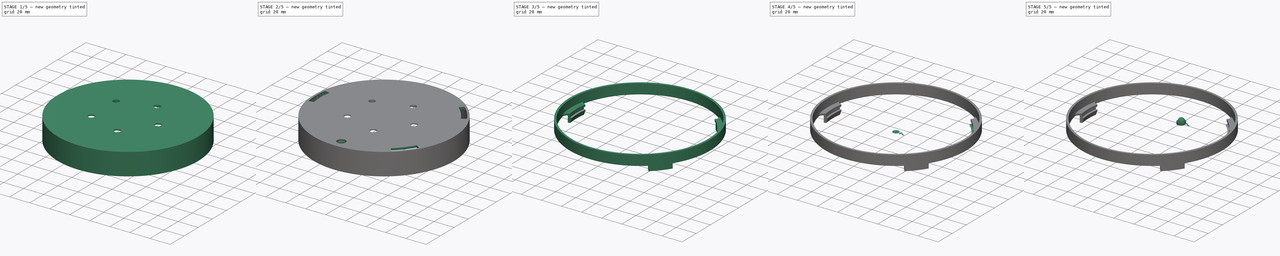
[diagram: build sequence overview — one tinted view per stage of 5, left to right]
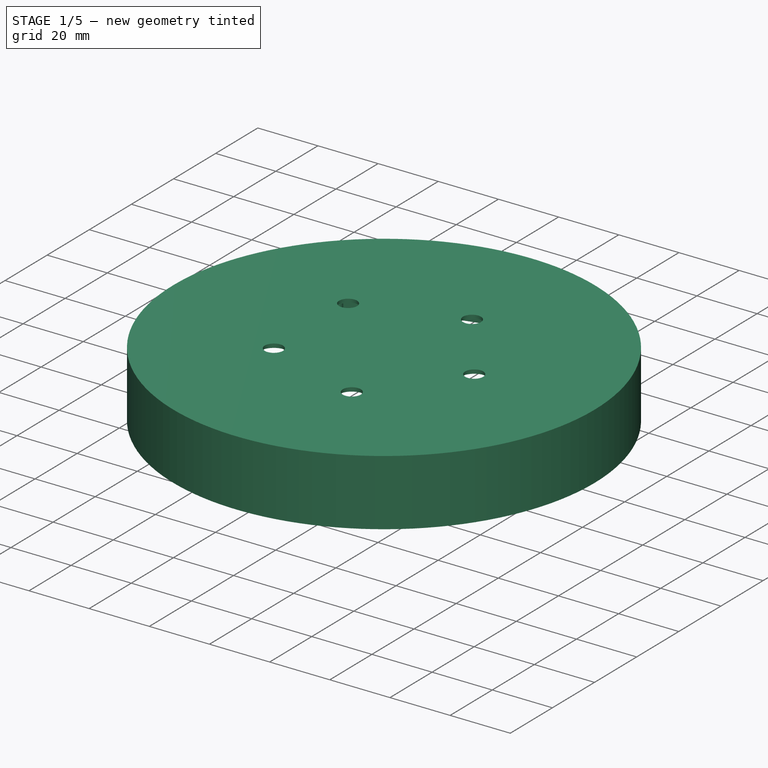
[diagram: stage 1 of 5 — iso view after this stage's code; geometry added in this stage tinted green]
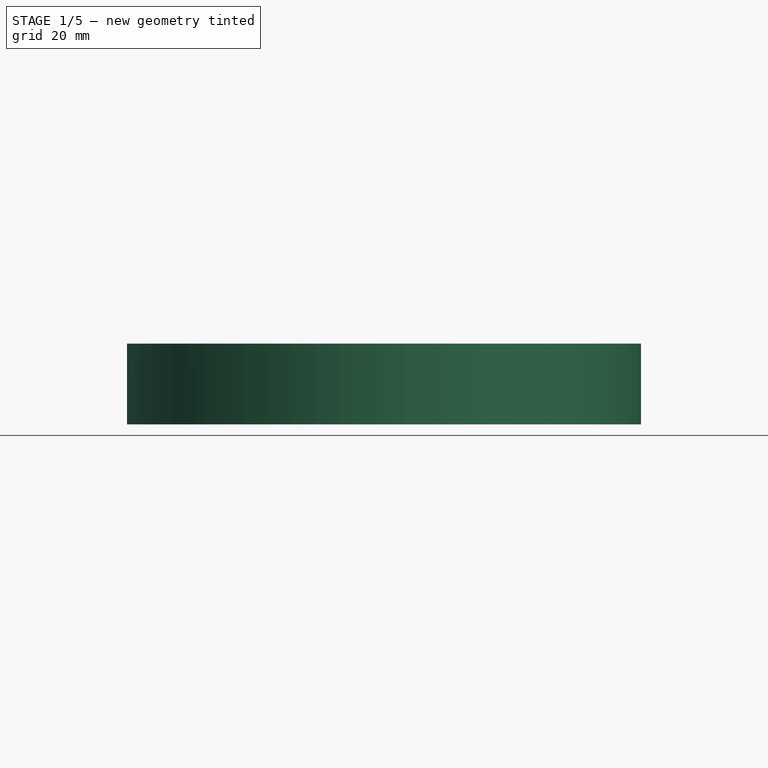
[diagram: stage 1 of 5 — front view after this stage's code; geometry added in this stage tinted green]
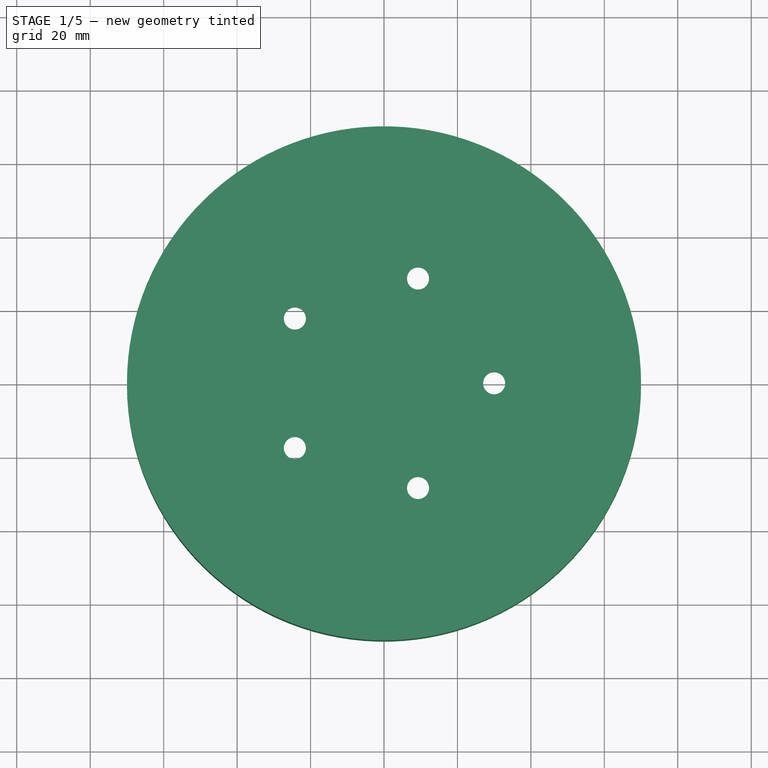
[diagram: stage 1 of 5 — top view after this stage's code; geometry added in this stage tinted green]
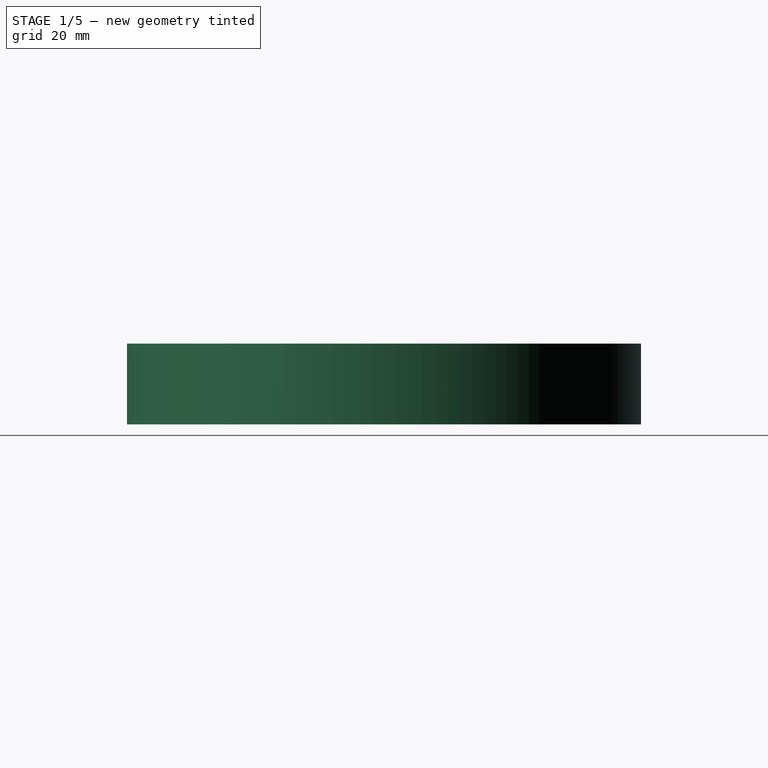
[diagram: stage 1 of 5 — right view after this stage's code; geometry added in this stage tinted green]
FCSTD DOCUMENT  (FreeCAD 0.19R19056 (Git))
Label: LedHoledr_vaso13
License: All rights reserved
LicenseURL: http://en.wikipedia.org/wiki/All_rights_reserved
objects: Sketcher::SketchObject×30, PartDesign::Pad×12, PartDesign::Body×7, PartDesign::Pocket×5, PartDesign::Fillet×5, PartDesign::ShapeBinder×4, PartDesign::AdditiveLoft×4, PartDesign::Chamfer×2, PartDesign::Plane×1, PartDesign::Revolution×1, Part::MultiFuse×1, PartDesign::FeatureBase×1, PartDesign::SubtractiveLoft×1
note: 97 computed .brp shape members not serialized (recipe doc carries the construction recipe); baked Part::Feature solids carry a one-line shape summary decoded from their .brp

FEATURE [Sketcher::SketchObject] Sketch
  MapMode = 5
  Support = -> [XY_Plane]
  sketch-geometry (1):
    g0: Circle CenterX=0 CenterY=0 CenterZ=0 NormalX=0 NormalY=0 NormalZ=1 AngleXU=0 Radius=70
  constraints (2):
    c: Coincident(g0,g-1)
    c: Radius(g0) = 70
FEATURE [PartDesign::Pad] Pad
  Length = 2
  Length2 = 100
  Profile = -> Sketch
  Type = 0
FEATURE [Sketcher::SketchObject] Sketch001
  MapMode = 5
  Placement = pos=(0,0,2) rot=(0,0,1;0rad)
  Support = -> [Pad]
  sketch-geometry (11):
    g0: LineSegment [constr] StartX=30 StartY=-3.6e-15 StartZ=0 EndX=9.27051 EndY=28.5317 EndZ=0
    g1: LineSegment [constr] StartX=9.27051 StartY=28.5317 StartZ=0 EndX=-24.2705 EndY=17.6336 EndZ=0
    g2: LineSegment [constr] StartX=-24.2705 StartY=17.6336 StartZ=0 EndX=-24.2705 EndY=-17.6336 EndZ=0
    g3: LineSegment [constr] StartX=-24.2705 StartY=-17.6336 StartZ=0 EndX=9.27051 EndY=-28.5317 EndZ=0
    g4: LineSegment [constr] StartX=9.27051 StartY=-28.5317 StartZ=0 EndX=30 EndY=-3.6e-15 EndZ=0
    g5: Circle [constr] CenterX=0 CenterY=0 CenterZ=0 NormalX=0 NormalY=0 NormalZ=1 AngleXU=0 Radius=30
    g6: Circle CenterX=9.27051 CenterY=28.5317 CenterZ=0 NormalX=0 NormalY=0 NormalZ=1 AngleXU=0 Radius=3
    g7: Circle CenterX=30 CenterY=-3.6e-15 CenterZ=0 NormalX=0 NormalY=0 NormalZ=1 AngleXU=0 Radius=3
    g8: Circle CenterX=9.27051 CenterY=-28.5317 CenterZ=0 NormalX=0 NormalY=0 NormalZ=1 AngleXU=0 Radius=3
    g9: Circle CenterX=-24.2705 CenterY=-17.6336 CenterZ=0 NormalX=0 NormalY=0 NormalZ=1 AngleXU=0 Radius=3
    g10: Circle CenterX=-24.2705 CenterY=17.6336 CenterZ=0 NormalX=0 NormalY=0 NormalZ=1 AngleXU=0 Radius=3
  constraints (24):
    c: Coincident(g0,g1)
    c: Coincident(g1,g2)
    c: Coincident(g2,g3)
    c: Coincident(g3,g4)
    c: Coincident(g4,g0)
    c: Equal(g0, g1-g4) x4
    c: PointOnObject(g0,g5)
    c: PointOnObject(g1,g5)
    c: PointOnObject(g2,g5)
    c: PointOnObject(g3,g5)
    c: PointOnObject(g4,g5)
    c: Coincident(g5,g-1)
    c: PointOnObject(g4,g-1)
    c: DistanceX(g-1,g0) = 30
    c: Coincident(g6,g0)
    c: Radius(g6) = 3
    c: Coincident(g7,g0)
    c: Coincident(g8,g3)
    c: Coincident(g9,g2)
    c: Coincident(g10,g1)
    c: Equal(g6,g7)
    c: Equal(g7,g8)
    c: Equal(g8,g9)
    c: Equal(g9,g10)
FEATURE [PartDesign::Pocket] Pocket
  BaseFeature = -> Pad
  Length = 5
  Length2 = 100
  Profile = -> Sketch001
  Type = 1
FEATURE [Sketcher::SketchObject] Sketch011
  MapMode = 5
  Placement = pos=(0,0,0) rot=(1,0,0;3.14159rad)
  Support = -> [Pocket]
  sketch-geometry (11):
    g0: LineSegment [constr] StartX=30 StartY=-3.6e-15 StartZ=0 EndX=9.27051 EndY=28.5317 EndZ=0
    g1: LineSegment [constr] StartX=9.27051 StartY=28.5317 StartZ=0 EndX=-24.2705 EndY=17.6336 EndZ=0
    g2: LineSegment [constr] StartX=-24.2705 StartY=17.6336 StartZ=0 EndX=-24.2705 EndY=-17.6336 EndZ=0
    g3: LineSegment [constr] StartX=-24.2705 StartY=-17.6336 StartZ=0 EndX=9.27051 EndY=-28.5317 EndZ=0
    g4: LineSegment [constr] StartX=9.27051 StartY=-28.5317 StartZ=0 EndX=30 EndY=-3.6e-15 EndZ=0
    g5: Circle [constr] CenterX=0 CenterY=0 CenterZ=0 NormalX=0 NormalY=0 NormalZ=1 AngleXU=0 Radius=30
    g6: Circle CenterX=30 CenterY=-3.6e-15 CenterZ=0 NormalX=0 NormalY=0 NormalZ=1 AngleXU=0 Radius=4.5
    g7: Circle CenterX=9.27051 CenterY=28.5317 CenterZ=0 NormalX=0 NormalY=0 NormalZ=1 AngleXU=0 Radius=4.5
    g8: Circle CenterX=-24.2705 CenterY=17.6336 CenterZ=0 NormalX=0 NormalY=0 NormalZ=1 AngleXU=0 Radius=4.5
    g9: Circle CenterX=-24.2705 CenterY=-17.6336 CenterZ=0 NormalX=0 NormalY=0 NormalZ=1 AngleXU=0 Radius=4.5
    g10: Circle CenterX=9.27051 CenterY=-28.5317 CenterZ=0 NormalX=0 NormalY=0 NormalZ=1 AngleXU=0 Radius=4.5
  constraints (24):
    c: Coincident(g0,g1)
    c: Coincident(g1,g2)
    c: Coincident(g2,g3)
    c: Coincident(g3,g4)
    c: Coincident(g4,g0)
    c: Equal(g0, g1-g4) x4
    c: PointOnObject(g0,g5)
    c: PointOnObject(g1,g5)
    c: PointOnObject(g2,g5)
    c: PointOnObject(g3,g5)
    c: PointOnObject(g4,g5)
    c: Coincident(g5,g-1)
    c: PointOnObject(g4,g-1)
    c: DistanceX(g-1,g0) = 30
    c: Coincident(g6,g0)
    c: Radius(g6) = 4.5
    c: Coincident(g7,g0)
    c: Coincident(g8,g1)
    c: Coincident(g9,g2)
    c: Coincident(g10,g3)
    c: Equal(g7,g8)
    c: Equal(g10,g9)
    c: Equal(g6,g10)
    c: Equal(g9,g8)
FEATURE [PartDesign::Pocket] Pocket002
  BaseFeature = -> Pocket
  Length = 1
  Length2 = 100
  Profile = -> Sketch011
  Type = 0
FEATURE [Sketcher::SketchObject] Sketch012
  MapMode = 5
  Placement = pos=(0,0,0) rot=(1,0,0;3.14159rad)
  Support = -> [Pocket002]
  sketch-geometry (2):
    g0: Circle CenterX=0 CenterY=0 CenterZ=0 NormalX=0 NormalY=0 NormalZ=1 AngleXU=0 Radius=70
    g1: Circle CenterX=0 CenterY=0 CenterZ=0 NormalX=0 NormalY=0 NormalZ=1 AngleXU=0 Radius=68
  constraints (4):
    c: Coincident(g0,g-1)
    c: Coincident(g1,g0)
    c: Radius(g0) = 70
    c: Radius(g1) = 68
FEATURE [PartDesign::Pad] Pad005
  BaseFeature = -> Pocket002
  Length = 20
  Length2 = 100
  Profile = -> Sketch012
  Type = 0
FEATURE [PartDesign::Body] Body010  label="LED2"
  BaseFeature = -> Fusion001
  Group = -> [Clone]
  Origin = -> Origin010
  Placement = pos=(58.4,-9.2,0) rot=(0,0,1;1.5708rad)
  Tip = -> Clone
FEATURE [Sketcher::SketchObject] Sketch030
  MapMode = 5
  Placement = pos=(0,0,1) rot=(1,0,0;3.14159rad)
  sketch-geometry (5):
    g0: Circle CenterX=15.0314 CenterY=-10.4945 CenterZ=0 NormalX=0 NormalY=0 NormalZ=1 AngleXU=0 Radius=3
    g1: Circle CenterX=-38.4545 CenterY=-33.0665 CenterZ=0 NormalX=0 NormalY=0 NormalZ=1 AngleXU=0 Radius=3
    g2: Circle CenterX=34.6789 CenterY=-51.0272 CenterZ=0 NormalX=0 NormalY=0 NormalZ=1 AngleXU=0 Radius=3
    g3: Circle CenterX=4.56173 CenterY=-60.0309 CenterZ=0 NormalX=0 NormalY=0 NormalZ=1 AngleXU=0 Radius=3
    g4: Circle CenterX=-21.6926 CenterY=-54.6115 CenterZ=0 NormalX=0 NormalY=0 NormalZ=1 AngleXU=0 Radius=3
  constraints (5):
    c: Diameter(g4) = 6
    c: Equal(g4,g1)
    c: Equal(g1,g0)
    c: Equal(g0,g2)
    c: Equal(g2,g3)
FEATURE [PartDesign::Pad] Pad014
  BaseFeature = -> Pad005
  Length = 4
  Length2 = 100
  Profile = -> Sketch030
  Type = 0
FEATURE [Sketcher::SketchObject] Sketch031
  ExternalGeometry = -> [Pad014]
  MapMode = 5
  Placement = pos=(0,0,-3) rot=(1,0,0;3.14159rad)
  Support = -> [Pad014]
  sketch-geometry (5):
    g0: Circle CenterX=-38.4545 CenterY=-33.0665 CenterZ=0 NormalX=0 NormalY=0 NormalZ=1 AngleXU=0 Radius=1.4
    g1: Circle CenterX=-21.6926 CenterY=-54.6115 CenterZ=0 NormalX=0 NormalY=0 NormalZ=1 AngleXU=0 Radius=1.4
    g2: Circle CenterX=4.56173 CenterY=-60.0309 CenterZ=0 NormalX=0 NormalY=0 NormalZ=1 AngleXU=0 Radius=1.4
    g3: Circle CenterX=34.6789 CenterY=-51.0272 CenterZ=0 NormalX=0 NormalY=0 NormalZ=1 AngleXU=0 Radius=1.4
    g4: Circle CenterX=15.0314 CenterY=-10.4945 CenterZ=0 NormalX=0 NormalY=0 NormalZ=1 AngleXU=0 Radius=1.4
  constraints (5):
    c: Equal(g4,g0)
    c: Equal(g0,g1)
    c: Equal(g1,g2)
    c: Equal(g2,g3)
    c: Diameter(g4) = 2.8
FEATURE [PartDesign::Pad] Pad015
  BaseFeature = -> Pad014
  Length = 6
  Length2 = 100
  Profile = -> Sketch031
  Type = 0
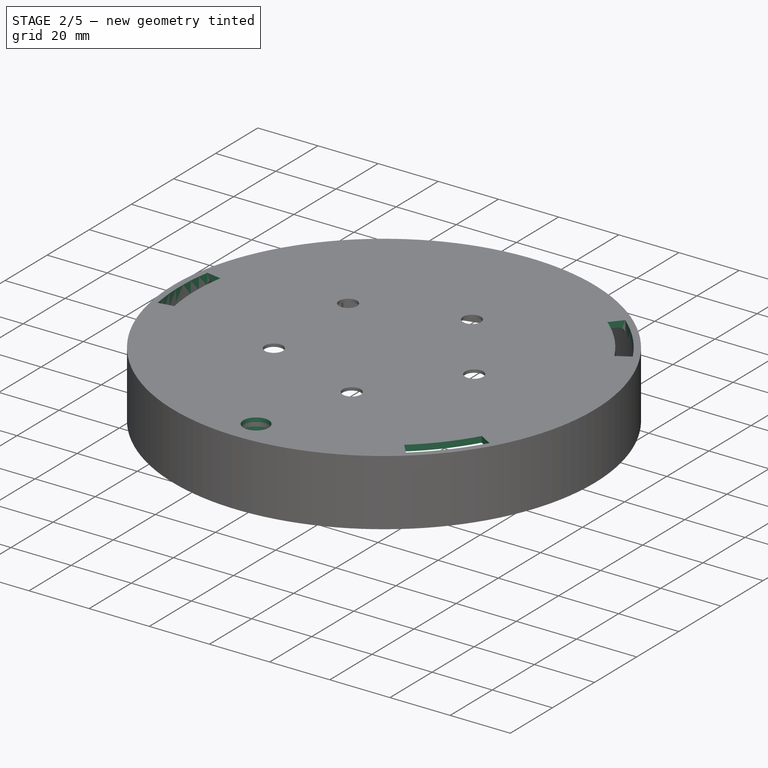
[diagram: stage 2 of 5 — iso view after this stage's code; geometry added in this stage tinted green]
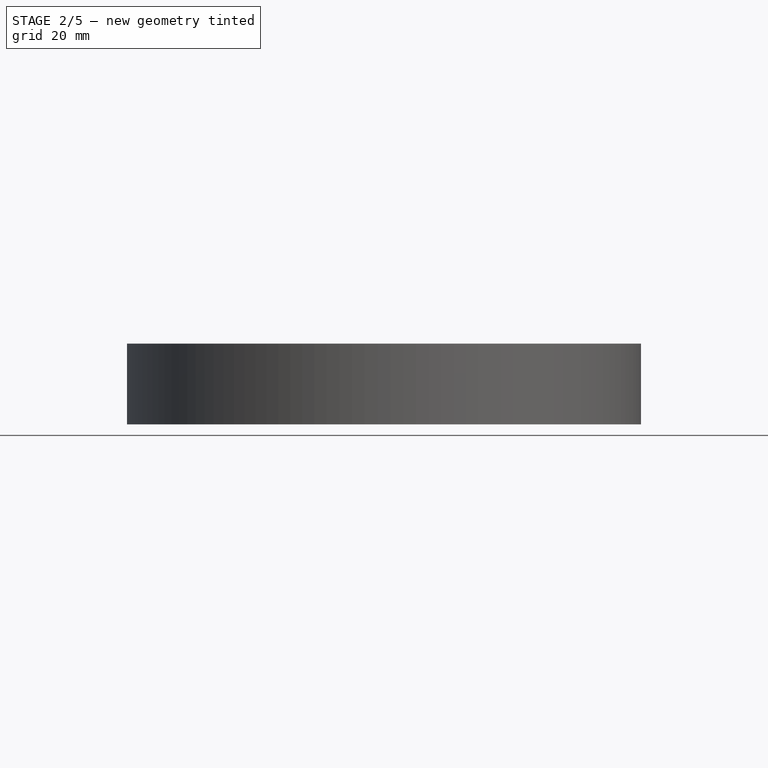
[diagram: stage 2 of 5 — front view after this stage's code; geometry added in this stage tinted green]
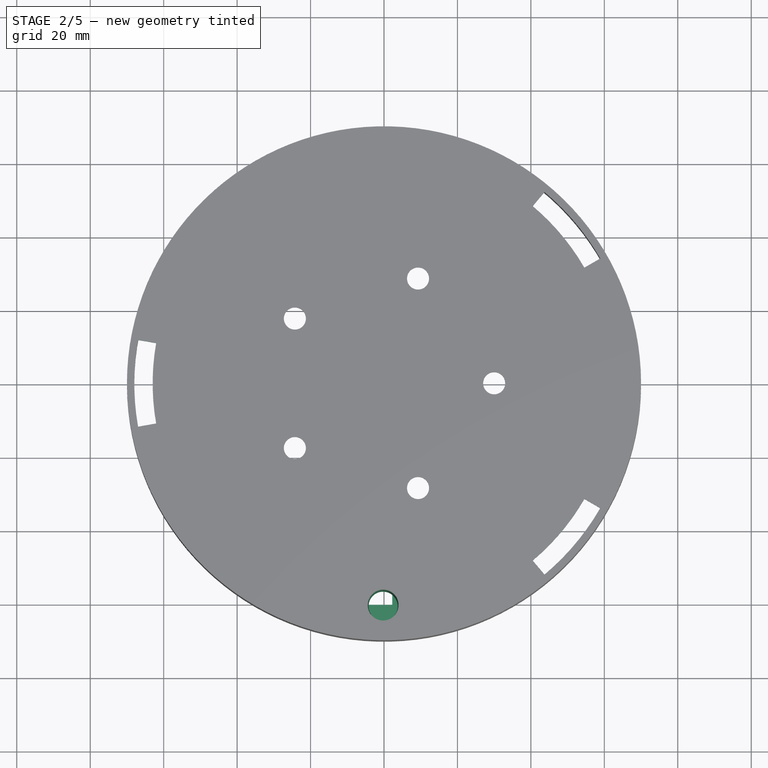
[diagram: stage 2 of 5 — top view after this stage's code; geometry added in this stage tinted green]
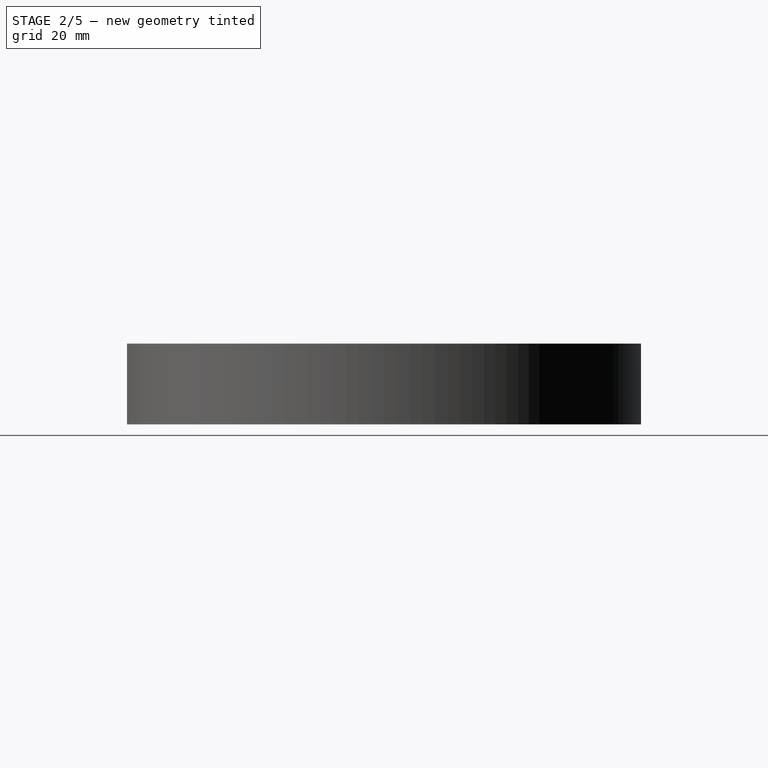
[diagram: stage 2 of 5 — right view after this stage's code; geometry added in this stage tinted green]
FEATURE [Sketcher::SketchObject] Sketch032
  MapMode = 5
  Placement = pos=(0,0,0) rot=(1,0,0;3.14159rad)
  sketch-geometry (1):
    g0: Circle CenterX=-0.238248 CenterY=60.3975 CenterZ=0 NormalX=0 NormalY=0 NormalZ=1 AngleXU=0 Radius=5
  constraints (1):
    c: Diameter(g0) = 10
FEATURE [PartDesign::Pad] Pad016
  BaseFeature = -> Pad015
  Length = 20
  Length2 = 100
  Profile = -> Sketch032
  Type = 0
FEATURE [Sketcher::SketchObject] Sketch036
  AttachmentOffset = pos=(-55,0,-1) rot=(0,1,0;1.5708rad)
  MapMode = 5
  Placement = pos=(-1,-55,1.2e-14) rot=(0,0.707107,0.707107;3.14159rad)
  Support = -> [YZ_Plane]
  sketch-geometry (5):
    g0: LineSegment StartX=-3.25567 StartY=-17 StartZ=0 EndX=3.25567 EndY=-17 EndZ=0
    g1: LineSegment StartX=3.25567 StartY=-17 StartZ=0 EndX=3.25567 EndY=-20 EndZ=0
    g2: LineSegment StartX=3.25567 StartY=-20 StartZ=0 EndX=-3.25567 EndY=-20 EndZ=0
    g3: LineSegment StartX=-3.25567 StartY=-20 StartZ=0 EndX=-3.25567 EndY=-17 EndZ=0
    g4: GeomPoint X=0 Y=-17 Z=0
  constraints (12):
    c: Coincident(g0,g1)
    c: Coincident(g1,g2)
    c: Coincident(g2,g3)
    c: Coincident(g3,g0)
    c: Horizontal(g0)
    c: Horizontal(g2)
    c: Vertical(g1)
    c: Vertical(g3)
    c: DistanceY(g2,g-1) = 20
    c: DistanceY(g1,g1) = 3
    c: PointOnObject(g4,g-2)
    c: Symmetric(g0,g0,g4)
FEATURE [PartDesign::Pocket] Pocket005
  BaseFeature = -> Pad016
  Length = 5
  Length2 = 100
  Profile = -> Sketch036
  Type = 0
FEATURE [PartDesign::Fillet] Fillet
  Base = -> Pocket005 [Edge23]
  BaseFeature = -> Pocket005
  Radius = 2
FEATURE [PartDesign::Chamfer] Chamfer
  Base = -> Fillet [Edge15,Edge13,Edge7,Edge8,Edge11]
  BaseFeature = -> Fillet
  Size = 0.7
FEATURE [PartDesign::Chamfer] Chamfer001
  Base = -> Chamfer [Edge47,Edge46,Edge49,Edge45,Edge48]
  BaseFeature = -> Chamfer
  Size = 1
FEATURE [Sketcher::SketchObject] Sketch037
  AttachmentOffset = pos=(0,0,-2) rot=(0,0,1;0rad)
  ExternalGeometry = -> [Chamfer001]
  MapMode = 5
  Placement = pos=(0,0,-18) rot=(1,0,0;3.14159rad)
  Support = -> [Chamfer001]
  sketch-geometry (1):
    g0: Circle CenterX=-0.238248 CenterY=60.3975 CenterZ=0 NormalX=0 NormalY=0 NormalZ=1 AngleXU=0 Radius=3.95
  constraints (2):
    c: Coincident(g0,g-3)
    c: Diameter(g0) = 7.9
FEATURE [Sketcher::SketchObject] Sketch038
  AttachmentOffset = pos=(0,0,-22) rot=(0,0,1;0rad)
  ExternalGeometry = -> [Chamfer001]
  MapMode = 5
  Placement = pos=(0,0,2) rot=(1,0,0;3.14159rad)
  Support = -> [Chamfer001]
  sketch-geometry (1):
    g0: Circle CenterX=-0.238248 CenterY=60.3975 CenterZ=0 NormalX=0 NormalY=0 NormalZ=1 AngleXU=0 Radius=4.2
  constraints (2):
    c: Coincident(g0,g-3)
    c: Diameter(g0) = 8.4
FEATURE [PartDesign::SubtractiveLoft] SubtractiveLoft
  BaseFeature = -> Chamfer001
  Closed = false
  Profile = -> Sketch037
  Ruled = false
  Sections = -> [Sketch038]
FEATURE [Sketcher::SketchObject] Sketch039
  MapMode = 5
  Placement = pos=(0,0,2) rot=(0,0,1;0rad)
  Support = -> [SubtractiveLoft]
  sketch-geometry (19):
    g0: ArcOfCircle CenterX=0 CenterY=0 CenterZ=0 NormalX=0 NormalY=0 NormalZ=1 AngleXU=0 Radius=68 StartAngle=2.96706 EndAngle=3.31613
    g1: ArcOfCircle CenterX=0 CenterY=0 CenterZ=0 NormalX=0 NormalY=0 NormalZ=1 AngleXU=0 Radius=68 StartAngle=0.523599 EndAngle=0.872665
    g2: ArcOfCircle CenterX=0 CenterY=0 CenterZ=0 NormalX=0 NormalY=0 NormalZ=1 AngleXU=0 Radius=63 StartAngle=0.523599 EndAngle=0.872665
    g3: LineSegment [constr] StartX=-66.9669 StartY=11.8081 StartZ=0 EndX=0 EndY=0 EndZ=0
    g4: LineSegment [constr] StartX=-66.9669 StartY=-11.8081 StartZ=0 EndX=0 EndY=0 EndZ=0
    g5: LineSegment StartX=-66.9669 StartY=11.8081 StartZ=0 EndX=-62.0429 EndY=10.9398 EndZ=0
    g6: LineSegment StartX=-66.9669 StartY=-11.8081 StartZ=0 EndX=-62.0429 EndY=-10.9398 EndZ=0
    g7: LineSegment [constr] StartX=43.7096 StartY=52.091 StartZ=0 EndX=0 EndY=0 EndZ=0
    g8: LineSegment [constr] StartX=58.8897 StartY=34 StartZ=0 EndX=0 EndY=0 EndZ=0
    g9: LineSegment StartX=43.7096 StartY=52.091 StartZ=0 EndX=40.4956 EndY=48.2608 EndZ=0
    g10: LineSegment StartX=54.5596 StartY=31.5 StartZ=0 EndX=58.8897 EndY=34 EndZ=0
    g11: GeomPoint X=-62.0429 Y=0 Z=0
    g12: ArcOfCircle CenterX=0 CenterY=0 CenterZ=0 NormalX=0 NormalY=0 NormalZ=1 AngleXU=0 Radius=63 StartAngle=2.96706 EndAngle=3.31613
    g13: ArcOfCircle CenterX=0 CenterY=0 CenterZ=0 NormalX=0 NormalY=0 NormalZ=1 AngleXU=0 Radius=68 StartAngle=5.41052 EndAngle=5.75959
    g14: ArcOfCircle CenterX=0 CenterY=0 CenterZ=0 NormalX=0 NormalY=0 NormalZ=1 AngleXU=0 Radius=63 StartAngle=5.41052 EndAngle=5.75959
    g15: LineSegment [constr] StartX=0 StartY=0 StartZ=0 EndX=58.8897 EndY=-34 EndZ=0
    g16: LineSegment [constr] StartX=43.7096 StartY=-52.091 StartZ=0 EndX=0 EndY=0 EndZ=0
    g17: LineSegment StartX=54.5596 StartY=-31.5 StartZ=0 EndX=58.8897 EndY=-34 EndZ=0
    g18: LineSegment StartX=43.7096 StartY=-52.091 StartZ=0 EndX=40.4956 EndY=-48.2608 EndZ=0
  constraints (49):
    c: Coincident(g0,g-1)
    c: Coincident(g1,g0)
    c: Coincident(g2,g0)
    c: Radius(g0) = 68
    c: Radius(g1) = 68
    c: Radius(g2) = 63
    c: Coincident(g3,g0)
    c: Coincident(g3,g0)
    c: Coincident(g4,g0)
    c: Coincident(g4,g0)
    c: Angle(g3,g4) = 0.349066
    c: PointOnObject(g5,g3)
    c: PointOnObject(g6,g4)
    c: Coincident(g5,g0)
    c: Coincident(g6,g0)
    c: Coincident(g7,g1)
    c: Coincident(g7,g0)
    c: Coincident(g8,g1)
    c: Coincident(g8,g0)
    c: PointOnObject(g2,g7)
    c: PointOnObject(g2,g8)
    c: Coincident(g9,g1)
    c: Coincident(g9,g2)
    c: Coincident(g10,g2)
    c: Coincident(g10,g1)
    c: PointOnObject(g11,g-1)
    c: Symmetric(g6,g5,g11)
    c: Coincident(g12,g0)
    c: Coincident(g12,g5)
    c: Coincident(g12,g6)
    c: Radius(g12) = 63
    c: Angle(g8,g7) = 0.349066
    c: Angle(g-1,g8) = 0.523599
    c: Coincident(g14,g0)
    c: Radius(g13) = 68
    c: Radius(g14) = 63
    c: Coincident(g15,g0)
    c: Coincident(g15,g13)
    c: Coincident(g16,g13)
    c: Angle(g16,g15) = 0.349066
    c: PointOnObject(g14,g15)
    c: PointOnObject(g14,g16)
    c: Angle(g15,g-1) = 0.523599
    c: Coincident(g17,g14)
    c: Coincident(g17,g13)
    c: Coincident(g18,g13)
    c: Coincident(g18,g14)
    c: Coincident(g13,g0)
    c: Coincident(g16,g0)
FEATURE [PartDesign::Pocket] Pocket006
  BaseFeature = -> SubtractiveLoft
  Length = 5
  Length2 = 100
  Profile = -> Sketch039
  Type = 0
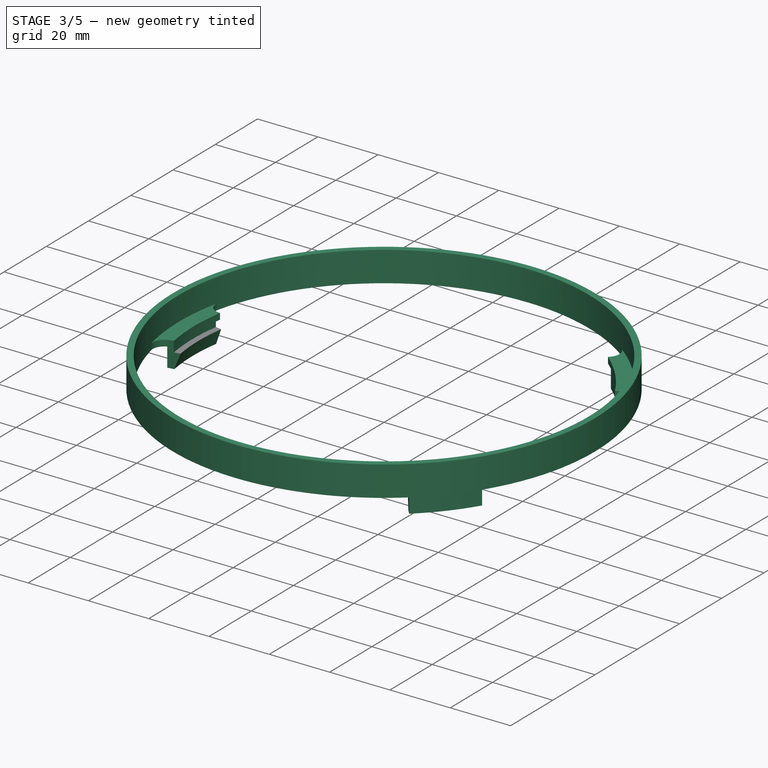
[diagram: stage 3 of 5 — iso view after this stage's code; geometry added in this stage tinted green]
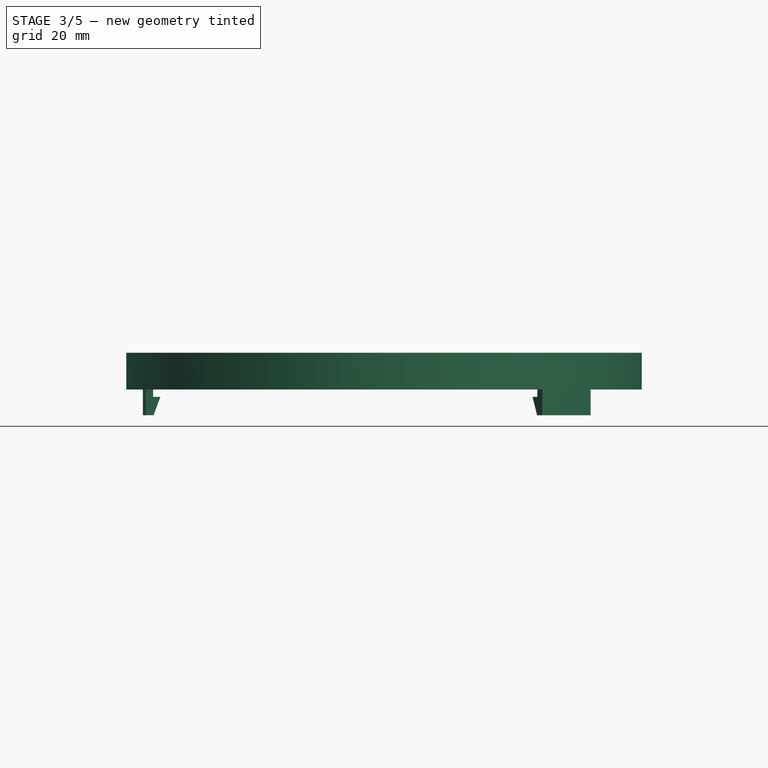
[diagram: stage 3 of 5 — front view after this stage's code; geometry added in this stage tinted green]
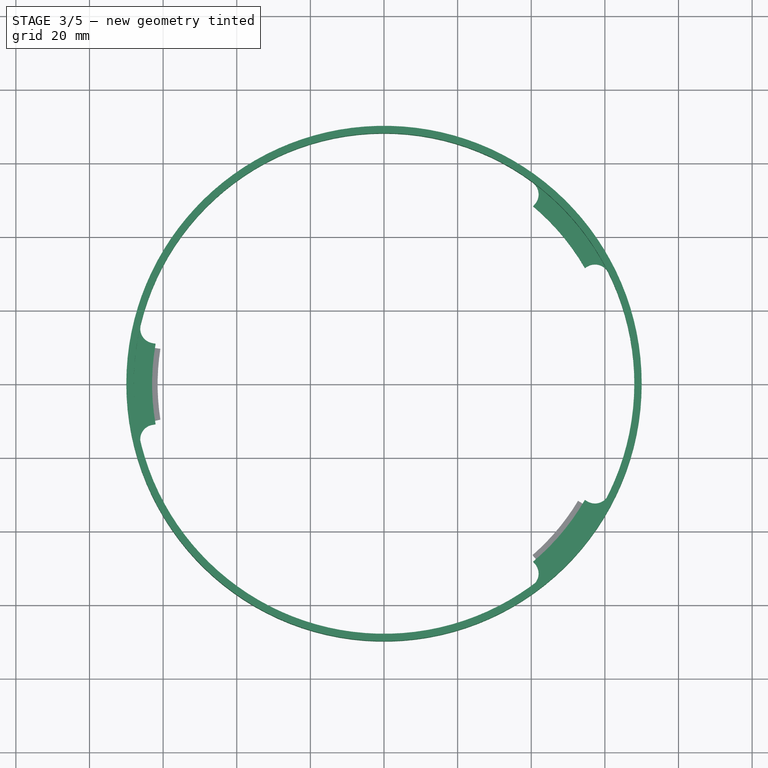
[diagram: stage 3 of 5 — top view after this stage's code; geometry added in this stage tinted green]
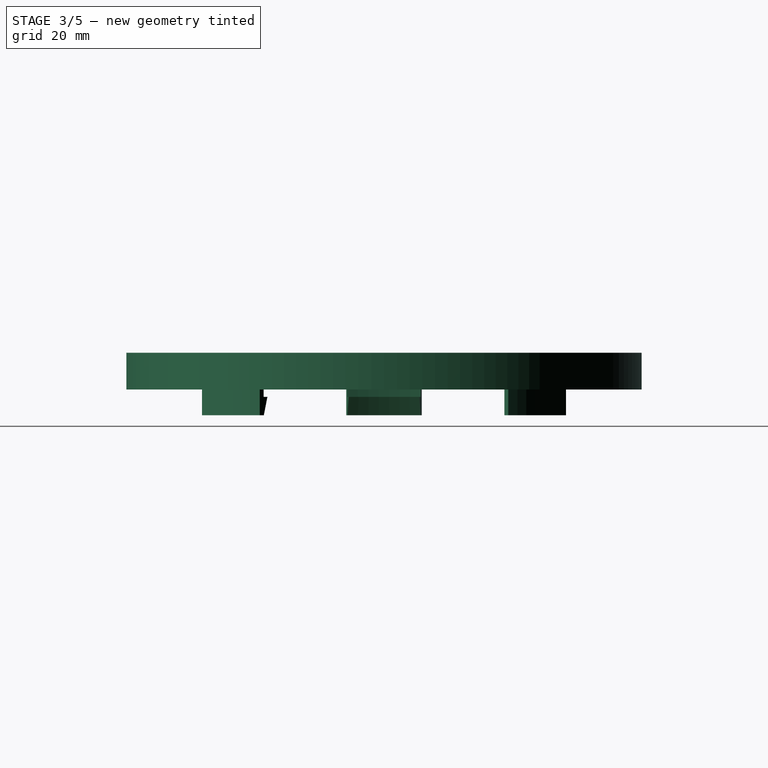
[diagram: stage 3 of 5 — right view after this stage's code; geometry added in this stage tinted green]
FEATURE [PartDesign::Body] Body
  Group = -> [Sketch,Pad,Sketch001,Pocket,Sketch011,Pocket002,Sketch012,Pad005,Sketch013,Sketch030,Pad014,Sketch031,Pad015,Sketch032,Pad016,Sketch036,Pocket005,Fillet,Chamfer,Chamfer001,Sketch037,Sketch038,SubtractiveLoft,Sketch039,Pocket006]
  Origin = -> Origin
  Tip = -> Pocket006
FEATURE [PartDesign::ShapeBinder] ShapeBinder
  Support = -> [Pocket006]
  TraceSupport = false
FEATURE [Sketcher::SketchObject] Sketch040
  MapMode = 5
  Placement = pos=(0,0,2) rot=(0,0,1;0rad)
  Support = -> [ShapeBinder]
  sketch-geometry (2):
    g0: Circle CenterX=0 CenterY=0 CenterZ=0 NormalX=0 NormalY=0 NormalZ=1 AngleXU=0 Radius=70
    g1: Circle CenterX=0 CenterY=0 CenterZ=0 NormalX=0 NormalY=0 NormalZ=1 AngleXU=0 Radius=68
  constraints (3):
    c: Coincident(g0,g-1)
    c: Radius(g0) = 70
    c: Radius(g1) = 68
FEATURE [PartDesign::Pad] Pad017
  Length = 10
  Length2 = 100
  Profile = -> Sketch040
  Type = 0
FEATURE [Sketcher::SketchObject] Sketch041
  ExternalGeometry = -> [ShapeBinder]
  MapMode = 5
  Placement = pos=(0,0,2) rot=(0,0,1;0rad)
  Support = -> [ShapeBinder]
  sketch-geometry (13):
    g0: ArcOfCircle CenterX=-6.977e-13 CenterY=-2e-15 CenterZ=0 NormalX=0 NormalY=0 NormalZ=1 AngleXU=0 Radius=68 StartAngle=2.96706 EndAngle=3.31613
    g1: ArcOfCircle CenterX=-6.977e-13 CenterY=3.92e-14 CenterZ=0 NormalX=0 NormalY=0 NormalZ=1 AngleXU=0 Radius=63 StartAngle=2.96706 EndAngle=3.31613
    g2: ArcOfCircle CenterX=-6.977e-13 CenterY=-2e-15 CenterZ=0 NormalX=0 NormalY=0 NormalZ=1 AngleXU=0 Radius=68 StartAngle=0.523599 EndAngle=0.872665
    g3: ArcOfCircle CenterX=-6.977e-13 CenterY=-2e-15 CenterZ=0 NormalX=0 NormalY=0 NormalZ=1 AngleXU=0 Radius=63 StartAngle=0.523599 EndAngle=0.872665
    g4: ArcOfCircle CenterX=-6.977e-13 CenterY=-2e-15 CenterZ=0 NormalX=0 NormalY=0 NormalZ=1 AngleXU=0 Radius=63 StartAngle=5.41052 EndAngle=5.75959
    g5: ArcOfCircle CenterX=-6.977e-13 CenterY=-2e-15 CenterZ=0 NormalX=0 NormalY=0 NormalZ=1 AngleXU=0 Radius=68 StartAngle=5.41052 EndAngle=5.75959
    g6: LineSegment StartX=-66.9669 StartY=11.8081 StartZ=0 EndX=-62.0429 EndY=10.9398 EndZ=0
    g7: LineSegment StartX=-62.0429 StartY=-10.9398 StartZ=0 EndX=-66.9669 EndY=-11.8081 EndZ=0
    g8: LineSegment StartX=54.5596 StartY=-31.5 StartZ=0 EndX=58.8897 EndY=-34 EndZ=0
    g9: LineSegment StartX=40.4956 StartY=-48.2608 StartZ=0 EndX=43.7096 EndY=-52.091 EndZ=0
    g10: LineSegment StartX=49.1854 StartY=-28.4082 StartZ=0 EndX=48.5732 EndY=-28.4082 EndZ=0
    g11: LineSegment StartX=40.4956 StartY=48.2608 StartZ=0 EndX=43.7096 EndY=52.091 EndZ=0
    g12: LineSegment StartX=54.5596 StartY=31.5 StartZ=0 EndX=58.8897 EndY=34 EndZ=0
  constraints (31):
    c: Coincident(g0,g-3)
    c: Coincident(g0,g-4)
    c: Coincident(g-3,g1)
    c: Coincident(g1,g-4)
    c: Coincident(g6,g0)
    c: Coincident(g6,g1)
    c: Coincident(g7,g1)
    c: Coincident(g7,g0)
    c: Coincident(g4,g-5)
    c: Coincident(g4,g-6)
    c: Coincident(g-6,g5)
    c: Coincident(g5,g-5)
    c: Coincident(g8,g4)
    c: Coincident(g8,g5)
    c: Coincident(g9,g4)
    c: Coincident(g9,g5)
    c: Horizontal(g10)
    c: Coincident(g3,g-8)
    c: Coincident(g2,g-8)
    c: Coincident(g2,g-7)
    c: Coincident(g3,g-7)
    c: Coincident(g11,g3)
    c: Coincident(g11,g2)
    c: Coincident(g12,g3)
    c: Coincident(g12,g2)
    c: Coincident(g0,g1)
    c: Coincident(g0,g2)
    c: Coincident(g0,g3)
    c: Coincident(g0,g4)
    c: Coincident(g0,g5)
    c: Coincident(g0,g-1)
FEATURE [PartDesign::Pad] Pad018
  BaseFeature = -> Pad017
  Length = 2
  Length2 = 100
  Profile = -> Sketch041
  Type = 0
FEATURE [PartDesign::Fillet] Fillet007
  Base = -> Pad018 [Edge14,Edge12,Edge18,Edge20,Edge15,Edge17]
  BaseFeature = -> Pad018
  Radius = 4
FEATURE [Sketcher::SketchObject] Sketch042
  MapMode = 5
  Placement = pos=(0,0,2) rot=(1,0,0;3.14159rad)
  Support = -> [Fillet007]
  sketch-geometry (19):
    g0: ArcOfCircle CenterX=-6.977e-13 CenterY=0 CenterZ=0 NormalX=0 NormalY=0 NormalZ=1 AngleXU=0 Radius=63.5 StartAngle=2.98451 EndAngle=3.29867
    g1: ArcOfCircle CenterX=-6.977e-13 CenterY=0 CenterZ=0 NormalX=0 NormalY=0 NormalZ=1 AngleXU=0 Radius=65.5 StartAngle=2.98451 EndAngle=3.29867
    g2: LineSegment [constr] StartX=-6.977e-13 StartY=0 StartZ=0 EndX=-64.6936 EndY=10.2465 EndZ=0
    g3: LineSegment [constr] StartX=-6.977e-13 StartY=0 StartZ=0 EndX=-64.6936 EndY=-10.2465 EndZ=0
    g4: LineSegment StartX=-64.6936 StartY=10.2465 StartZ=0 EndX=-62.7182 EndY=9.93359 EndZ=0
    g5: LineSegment StartX=-64.6936 StartY=-10.2465 StartZ=0 EndX=-62.7182 EndY=-9.93359 EndZ=0
    g6: GeomPoint X=-64.6936 Y=0 Z=0
    g7: ArcOfCircle CenterX=-6.977e-13 CenterY=0 CenterZ=0 NormalX=0 NormalY=0 NormalZ=1 AngleXU=0 Radius=63.5 StartAngle=0.541052 EndAngle=0.855211
    g8: ArcOfCircle CenterX=-6.977e-13 CenterY=0 CenterZ=0 NormalX=0 NormalY=0 NormalZ=1 AngleXU=0 Radius=65.5 StartAngle=0.541052 EndAngle=0.855211
    g9: LineSegment [constr] StartX=42.9719 StartY=49.4335 StartZ=0 EndX=-6.963e-13 EndY=0 EndZ=0
    g10: LineSegment [constr] StartX=56.1445 StartY=33.735 StartZ=0 EndX=-6.963e-13 EndY=0 EndZ=0
    g11: LineSegment StartX=42.9719 StartY=49.4335 StartZ=0 EndX=41.6597 EndY=47.9241 EndZ=0
    g12: LineSegment StartX=56.1445 StartY=33.735 StartZ=0 EndX=54.4301 EndY=32.7049 EndZ=0
    g13: ArcOfCircle CenterX=-6.977e-13 CenterY=0 CenterZ=0 NormalX=0 NormalY=0 NormalZ=1 AngleXU=0 Radius=63.5 StartAngle=5.42797 EndAngle=5.74213
    g14: ArcOfCircle CenterX=-6.977e-13 CenterY=0 CenterZ=0 NormalX=0 NormalY=0 NormalZ=1 AngleXU=0 Radius=65.5 StartAngle=5.42797 EndAngle=5.74213
    g15: LineSegment [constr] StartX=56.1445 StartY=-33.735 StartZ=0 EndX=-6.963e-13 EndY=0 EndZ=0
    g16: LineSegment [constr] StartX=42.9719 StartY=-49.4335 StartZ=0 EndX=-6.963e-13 EndY=0 EndZ=0
    g17: LineSegment StartX=54.4301 StartY=-32.7049 StartZ=0 EndX=56.1445 EndY=-33.735 EndZ=0
    g18: LineSegment StartX=42.9719 StartY=-49.4335 StartZ=0 EndX=41.6597 EndY=-47.9241 EndZ=0
  constraints (48):
    c: Radius(g0) = 63.5
    c: Coincident(g1,g0)
    c: Radius(g1) = 65.5
    c: Coincident(g2,g0)
    c: Coincident(g2,g1)
    c: Coincident(g3,g0)
    c: Coincident(g3,g1)
    c: Angle(g2,g3) = 0.314159
    c: PointOnObject(g0,g2)
    c: PointOnObject(g0,g3)
    c: Coincident(g4,g1)
    c: Coincident(g4,g0)
    c: Coincident(g5,g1)
    c: Coincident(g5,g0)
    c: PointOnObject(g6,g-1)
    c: Symmetric(g1,g1,g6)
    c: Coincident(g8,g7)
    c: Coincident(g9,g8)
    c: Coincident(g9,g7)
    c: Coincident(g10,g8)
    c: Coincident(g10,g7)
    c: Angle(g10,g9) = 0.314159
    c: Angle(g-1,g10) = 0.541052
    c: Radius(g7) = 63.5
    c: Radius(g8) = 65.5
    c: Coincident(g11,g8)
    c: Coincident(g11,g7)
    c: Coincident(g12,g8)
    c: Coincident(g12,g7)
    c: PointOnObject(g7,g10)
    c: PointOnObject(g7,g9)
    c: Coincident(g7,g0)
    c: Coincident(g13,g0)
    c: Coincident(g14,g0)
    c: Coincident(g15,g14)
    c: Coincident(g15,g0)
    c: Coincident(g16,g14)
    c: Coincident(g16,g0)
    c: Angle(g16,g15) = 0.314159
    c: Angle(g15,g-1) = 0.541052
    c: Radius(g13) = 63.5
    c: Radius(g14) = 65.5
    c: Coincident(g17,g13)
    c: Coincident(g17,g14)
    c: Coincident(g18,g14)
    c: Coincident(g18,g13)
    c: PointOnObject(g13,g15)
    c: PointOnObject(g13,g16)
FEATURE [PartDesign::Pad] Pad019
  BaseFeature = -> Fillet007
  Length = 7
  Length2 = 100
  Profile = -> Sketch042
  Type = 0
FEATURE [Sketcher::SketchObject] Sketch043
  AttachmentOffset = pos=(0,0,2) rot=(0,0,1;0rad)
  ExternalGeometry = -> [Pad019]
  MapMode = 5
  Placement = pos=(0,0,0) rot=(1,0,0;3.14159rad)
  Support = -> [Pad019]
  sketch-geometry (6):
    g0: ArcOfCircle CenterX=0 CenterY=0 CenterZ=0 NormalX=0 NormalY=0 NormalZ=1 AngleXU=0 Radius=63.5 StartAngle=2.98451 EndAngle=3.29867
    g1: ArcOfCircle CenterX=0 CenterY=0 CenterZ=0 NormalX=0 NormalY=0 NormalZ=1 AngleXU=0 Radius=61.5 StartAngle=2.98451 EndAngle=3.29867
    g2: LineSegment [constr] StartX=-62.7182 StartY=9.93359 StartZ=0 EndX=0 EndY=0 EndZ=0
    g3: LineSegment [constr] StartX=-62.7182 StartY=-9.93359 StartZ=0 EndX=0 EndY=0 EndZ=0
    g4: LineSegment StartX=-62.7182 StartY=9.93359 StartZ=0 EndX=-60.7428 EndY=9.62072 EndZ=0
    g5: LineSegment StartX=-62.7182 StartY=-9.93359 StartZ=0 EndX=-60.7428 EndY=-9.62072 EndZ=0
  constraints (15):
    c: Coincident(g0,g-3)
    c: Coincident(g0,g-4)
    c: Coincident(g-1,g0)
    c: Coincident(g1,g0)
    c: Coincident(g2,g0)
    c: Coincident(g2,g0)
    c: Coincident(g3,g0)
    c: Coincident(g3,g0)
    c: PointOnObject(g1,g2)
    c: PointOnObject(g1,g3)
    c: Distance(g1,g0) = 2
    c: Coincident(g4,g0)
    c: Coincident(g4,g1)
    c: Coincident(g5,g0)
    c: Coincident(g5,g1)
FEATURE [Sketcher::SketchObject] Sketch044
  AttachmentOffset = pos=(0,0,7) rot=(0,0,1;0rad)
  ExternalGeometry = -> [Pad019]
  MapMode = 5
  Placement = pos=(0,0,-5) rot=(1,0,0;3.14159rad)
  Support = -> [Pad019]
  sketch-geometry (6):
    g0: ArcOfCircle CenterX=0 CenterY=-1.8e-15 CenterZ=0 NormalX=0 NormalY=0 NormalZ=1 AngleXU=0 Radius=63.5 StartAngle=2.98451 EndAngle=3.29867
    g1: LineSegment [constr] StartX=-62.7182 StartY=9.93359 StartZ=0 EndX=0 EndY=-1.8e-15 EndZ=0
    g2: LineSegment [constr] StartX=-62.7182 StartY=-9.93359 StartZ=0 EndX=0 EndY=-1.8e-15 EndZ=0
    g3: ArcOfCircle CenterX=0 CenterY=-1.8e-15 CenterZ=0 NormalX=0 NormalY=0 NormalZ=1 AngleXU=0 Radius=63.3988 StartAngle=2.98451 EndAngle=3.29867
    g4: LineSegment StartX=-62.7182 StartY=9.93359 StartZ=0 EndX=-62.6182 EndY=9.91775 EndZ=0
    g5: LineSegment StartX=-62.7182 StartY=-9.93359 StartZ=0 EndX=-62.6182 EndY=-9.91775 EndZ=0
  constraints (15):
    c: Coincident(g0,g-3)
    c: Coincident(g0,g-3)
    c: Coincident(g0,g-1)
    c: Coincident(g1,g0)
    c: Coincident(g1,g0)
    c: Coincident(g2,g0)
    c: Coincident(g2,g0)
    c: Coincident(g3,g0)
    c: PointOnObject(g3,g1)
    c: PointOnObject(g3,g2)
    c: Coincident(g4,g0)
    c: Coincident(g4,g3)
    c: Coincident(g5,g0)
    c: Coincident(g5,g3)
    c: DistanceX(g4,g4) = 0.1
FEATURE [PartDesign::AdditiveLoft] AdditiveLoft
  BaseFeature = -> Pad019
  Closed = false
  Profile = -> Sketch043
  Ruled = false
  Sections = -> [Sketch044]
FEATURE [Sketcher::SketchObject] Sketch045
  AttachmentOffset = pos=(0,0,2) rot=(0,0,1;0rad)
  ExternalGeometry = -> [AdditiveLoft]
  MapMode = 5
  Placement = pos=(0,0,0) rot=(1,0,0;3.14159rad)
  Support = -> [AdditiveLoft]
  sketch-geometry (6):
    g0: LineSegment [constr] StartX=41.6597 StartY=47.9241 StartZ=0 EndX=0 EndY=0 EndZ=0
    g1: LineSegment [constr] StartX=54.4301 StartY=32.7049 StartZ=0 EndX=0 EndY=0 EndZ=0
    g2: ArcOfCircle CenterX=0 CenterY=0 CenterZ=0 NormalX=0 NormalY=0 NormalZ=1 AngleXU=0 Radius=63.5 StartAngle=0.541052 EndAngle=0.855211
    g3: ArcOfCircle CenterX=0 CenterY=0 CenterZ=0 NormalX=0 NormalY=0 NormalZ=1 AngleXU=0 Radius=61.5 StartAngle=0.541052 EndAngle=0.855211
    g4: LineSegment StartX=40.3476 StartY=46.4146 StartZ=0 EndX=41.6597 EndY=47.9241 EndZ=0
    g5: LineSegment StartX=54.4301 StartY=32.7049 StartZ=0 EndX=52.7158 EndY=31.6748 EndZ=0
  constraints (15):
    c: Coincident(g0,g-3)
    c: Coincident(g0,g-1)
    c: Coincident(g1,g-3)
    c: Coincident(g1,g-1)
    c: Coincident(g2,g-1)
    c: Coincident(g2,g0)
    c: Coincident(g2,g1)
    c: Coincident(g3,g2)
    c: PointOnObject(g3,g0)
    c: PointOnObject(g3,g1)
    c: Coincident(g4,g3)
    c: Coincident(g4,g2)
    c: Coincident(g5,g2)
    c: Coincident(g5,g3)
    c: Distance(g4) = 2
FEATURE [Sketcher::SketchObject] Sketch046
  AttachmentOffset = pos=(0,0,7) rot=(0,0,1;0rad)
  ExternalGeometry = -> [AdditiveLoft]
  MapMode = 5
  Placement = pos=(0,0,-5) rot=(1,0,0;3.14159rad)
  Support = -> [AdditiveLoft]
  sketch-geometry (6):
    g0: LineSegment [constr] StartX=41.6597 StartY=47.9241 StartZ=0 EndX=0 EndY=0 EndZ=0
    g1: LineSegment [constr] StartX=54.4301 StartY=32.7049 StartZ=0 EndX=0 EndY=0 EndZ=0
    g2: ArcOfCircle CenterX=0 CenterY=0 CenterZ=0 NormalX=0 NormalY=0 NormalZ=1 AngleXU=0 Radius=63.5 StartAngle=0.541052 EndAngle=0.855211
    g3: ArcOfCircle CenterX=0 CenterY=0 CenterZ=0 NormalX=0 NormalY=0 NormalZ=1 AngleXU=0 Radius=63.4 StartAngle=0.541052 EndAngle=0.855211
    g4: LineSegment StartX=41.6597 StartY=47.9241 StartZ=0 EndX=41.5941 EndY=47.8486 EndZ=0
    g5: LineSegment StartX=54.4301 StartY=32.7049 StartZ=0 EndX=54.3444 EndY=32.6534 EndZ=0
  constraints (15):
    c: Coincident(g0,g-3)
    c: Coincident(g0,g-1)
    c: Coincident(g1,g-3)
    c: Coincident(g1,g-1)
    c: Coincident(g2,g-1)
    c: Coincident(g2,g0)
    c: Coincident(g2,g1)
    c: Coincident(g3,g2)
    c: PointOnObject(g3,g0)
    c: PointOnObject(g3,g1)
    c: Coincident(g4,g2)
    c: Coincident(g4,g3)
    c: Coincident(g5,g2)
    c: Coincident(g5,g3)
    c: Distance(g2,g3) = 0.1
FEATURE [PartDesign::AdditiveLoft] AdditiveLoft003
  BaseFeature = -> AdditiveLoft
  Closed = false
  Profile = -> Sketch046
  Ruled = false
  Sections = -> [Sketch045]
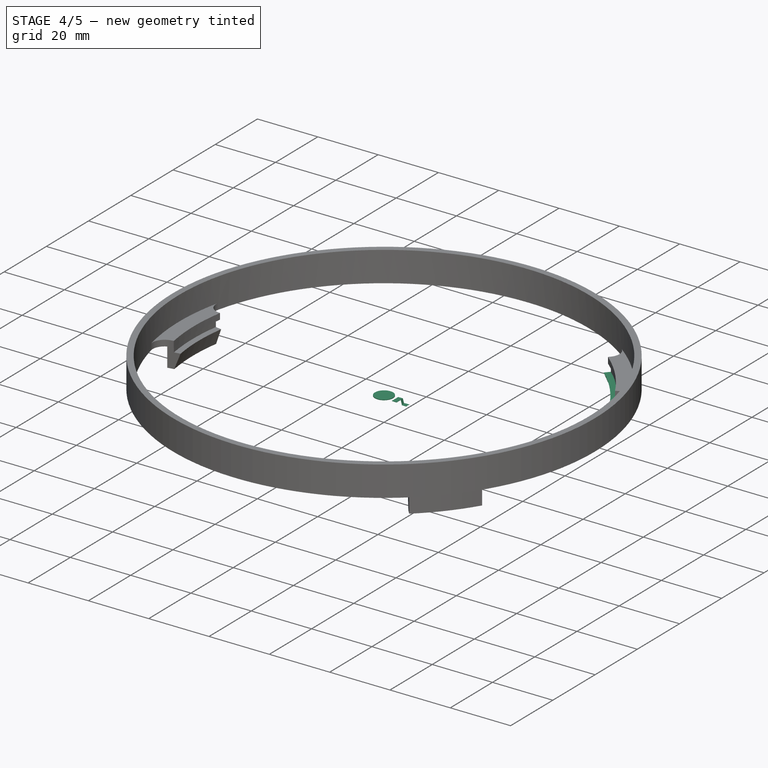
[diagram: stage 4 of 5 — iso view after this stage's code; geometry added in this stage tinted green]
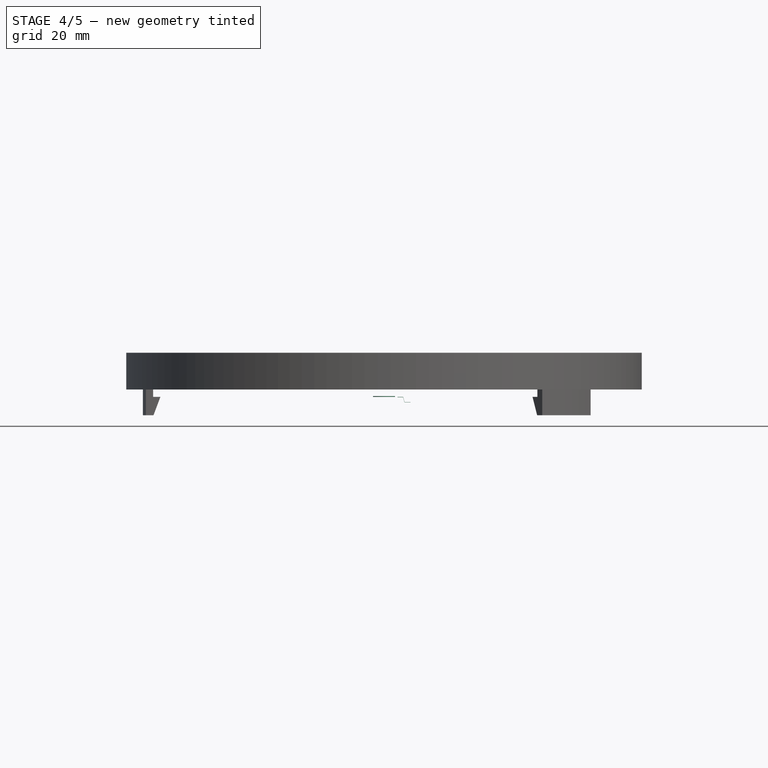
[diagram: stage 4 of 5 — front view after this stage's code; geometry added in this stage tinted green]
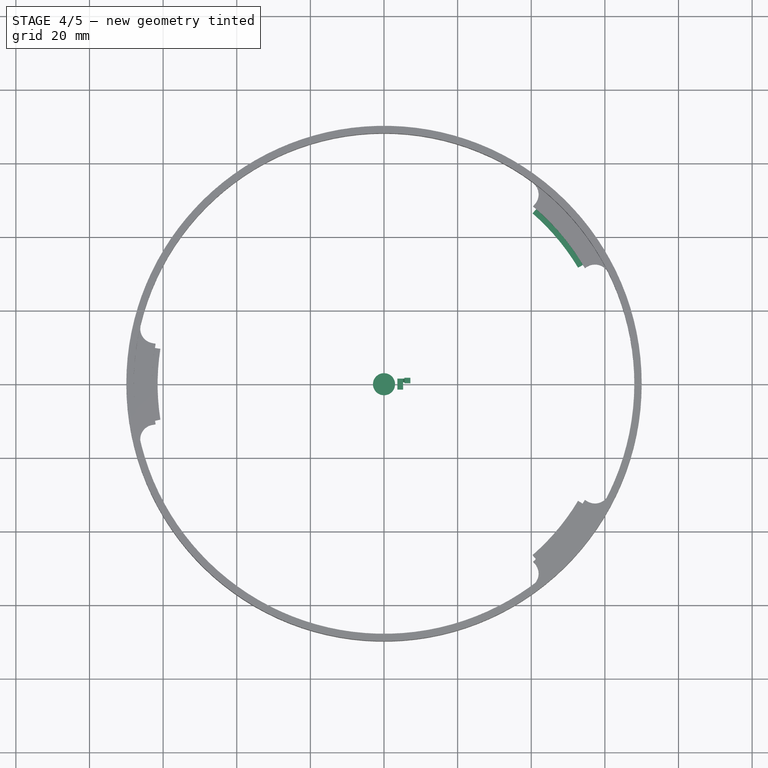
[diagram: stage 4 of 5 — top view after this stage's code; geometry added in this stage tinted green]
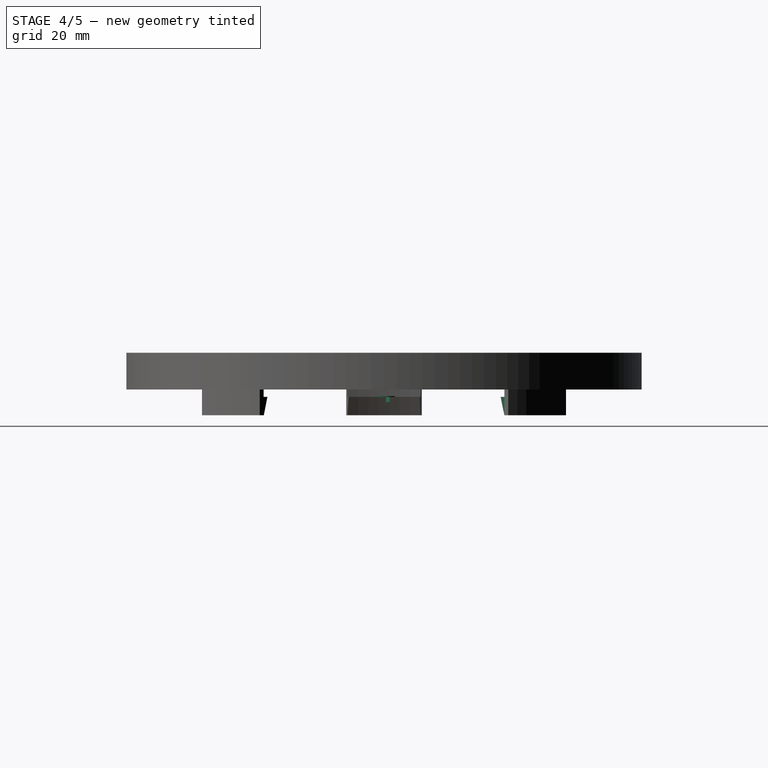
[diagram: stage 4 of 5 — right view after this stage's code; geometry added in this stage tinted green]
FEATURE [Sketcher::SketchObject] Sketch013
  MapMode = 5
  Placement = pos=(0,0,2) rot=(0,0,1;0rad)
  Support = -> [Pad005]
  sketch-geometry (2):
    g0: Circle CenterX=0 CenterY=0 CenterZ=0 NormalX=0 NormalY=0 NormalZ=1 AngleXU=0 Radius=70
    g1: Circle CenterX=0 CenterY=0 CenterZ=0 NormalX=0 NormalY=0 NormalZ=1 AngleXU=0 Radius=68.5
  constraints (4):
    c: Coincident(g0,g-1)
    c: Coincident(g1,g0)
    c: Radius(g0) = 70
    c: Radius(g1) = 68.5
FEATURE [Sketcher::SketchObject] Sketch020
  MapMode = 5
  Support = -> [XY_Plane006]
  sketch-geometry (1):
    g0: Circle CenterX=0 CenterY=0 CenterZ=0 NormalX=0 NormalY=0 NormalZ=1 AngleXU=0 Radius=4
  constraints (2):
    c: Coincident(g0,g-1)
    c: Radius(g0) = 4
FEATURE [PartDesign::Pad] Pad010
  Length = 2.5
  Length2 = 100
  Profile = -> Sketch020
  Type = 0
FEATURE [PartDesign::Body] Body007  label="Len001"
  Group = -> [DatumPlane001,CopyPad001,Sketch021,Revolution001]
  Origin = -> Origin007
  Tip = -> Revolution001
FEATURE [Sketcher::SketchObject] Sketch023
  ExternalGeometry = -> [Pad010]
  MapMode = 5
  Placement = pos=(0,0,2.5) rot=(0,0,1;0rad)
  Support = -> [Pad010]
  sketch-geometry (9):
    g0: LineSegment StartX=3.63 StartY=3.89812 StartZ=0 EndX=6.55045 EndY=3.89812 EndZ=0
    g1: LineSegment StartX=6.55045 StartY=3.89812 StartZ=0 EndX=6.55045 EndY=-4.01868 EndZ=0
    g2: LineSegment StartX=6.55045 StartY=-4.01868 StartZ=0 EndX=3.63 EndY=-4.01868 EndZ=0
    g3: LineSegment StartX=3.63 StartY=-4.01868 StartZ=0 EndX=3.63 EndY=3.89812 EndZ=0
    g4: GeomPoint X=0 Y=0 Z=0
    g5: LineSegment StartX=-3.5 StartY=-3.89812 StartZ=0 EndX=-6.55045 EndY=-3.89812 EndZ=0
    g6: LineSegment StartX=-6.55045 StartY=-3.89812 StartZ=0 EndX=-6.55045 EndY=4.01868 EndZ=0
    g7: LineSegment StartX=-6.55045 StartY=4.01868 StartZ=0 EndX=-3.5 EndY=4.01868 EndZ=0
    g8: LineSegment StartX=-3.5 StartY=4.01868 StartZ=0 EndX=-3.5 EndY=-3.89812 EndZ=0
  constraints (18):
    c: Coincident(g0,g1)
    c: Coincident(g1,g2)
    c: Coincident(g2,g3)
    c: Coincident(g3,g0)
    c: Horizontal(g0)
    c: Horizontal(g2)
    c: Vertical(g1)
    c: Vertical(g3)
    c: Coincident(g4,g-1)
    c: DistanceX(g-1,g2) = 3.63
    c: Coincident(g5,g6)
    c: Coincident(g6,g7)
    c: Coincident(g7,g8)
    c: Coincident(g8,g5)
    c: Horizontal(g5)
    c: Horizontal(g7)
    c: Vertical(g6)
    c: Vertical(g8)
FEATURE [PartDesign::Pocket] Pocket004
  BaseFeature = -> Pad010
  Length = 5
  Length2 = 100
  Profile = -> Sketch023
  Type = 1
FEATURE [PartDesign::Body] Body006
  Group = -> [Sketch020,Pad010,Sketch023,Pocket004]
  Origin = -> Origin006
  Tip = -> Pocket004
FEATURE [PartDesign::ShapeBinder] ShapeBinder001
  Support = -> [Pocket004]
  TraceSupport = false
FEATURE [Sketcher::SketchObject] Sketch022
  ExternalGeometry = -> [ShapeBinder001]
  MapMode = 5
  Support = -> [XY_Plane008]
  sketch-geometry (4):
    g0: LineSegment StartX=3.63 StartY=1.53558 StartZ=0 EndX=5.2 EndY=1.53558 EndZ=0
    g1: LineSegment StartX=5.2 StartY=1.53558 StartZ=0 EndX=5.2 EndY=-1.46442 EndZ=0
    g2: LineSegment StartX=5.2 StartY=-1.46442 StartZ=0 EndX=3.63 EndY=-1.46442 EndZ=0
    g3: LineSegment StartX=3.63 StartY=-1.46442 StartZ=0 EndX=3.63 EndY=1.53558 EndZ=0
  constraints (11):
    c: Coincident(g0,g1)
    c: Coincident(g1,g2)
    c: Coincident(g2,g3)
    c: Coincident(g3,g0)
    c: Horizontal(g0)
    c: Horizontal(g2)
    c: Vertical(g1)
    c: Vertical(g3)
    c: DistanceY(g1,g1) = 3
    c: DistanceX(g0,g0) = 1.57
    c: DistanceX(g-4,g0) = 0
FEATURE [PartDesign::Pad] Pad011
  Length = 0.1
  Length2 = 100
  Profile = -> Sketch022
  Reversed = true
  Type = 0
FEATURE [Sketcher::SketchObject] Sketch024
  ExternalGeometry = -> [Pad011]
  MapMode = 5
  Placement = pos=(0,0,-0.1) rot=(1,0,0;3.14159rad)
  Support = -> [Pad011]
  sketch-geometry (4):
    g0: LineSegment StartX=5.2 StartY=-1.53558 StartZ=0 EndX=5.15 EndY=-1.53558 EndZ=0
    g1: LineSegment StartX=5.15 StartY=-1.53558 StartZ=0 EndX=5.15 EndY=-0.535576 EndZ=0
    g2: LineSegment StartX=5.15 StartY=-0.535576 StartZ=0 EndX=5.2 EndY=-0.535576 EndZ=0
    g3: LineSegment StartX=5.2 StartY=-0.535576 StartZ=0 EndX=5.2 EndY=-1.53558 EndZ=0
  constraints (11):
    c: Coincident(g0,g1)
    c: Coincident(g1,g2)
    c: Coincident(g2,g3)
    c: Coincident(g3,g0)
    c: Horizontal(g0)
    c: Horizontal(g2)
    c: Vertical(g1)
    c: Vertical(g3)
    c: Coincident(g0,g-4)
    c: DistanceY(g3,g3) = 1
    c: DistanceX(g2,g2) = 0.05
FEATURE [Sketcher::SketchObject] Sketch025
  AttachmentOffset = pos=(0,0,1.3) rot=(0,0,1;0rad)
  ExternalGeometry = -> [Pad011]
  MapMode = 5
  Placement = pos=(0,0,-1.4) rot=(1,0,0;3.14159rad)
  Support = -> [Pad011]
  sketch-geometry (4):
    g0: LineSegment StartX=5.55 StartY=-0.528005 StartZ=0 EndX=5.6 EndY=-0.528005 EndZ=0
    g1: LineSegment StartX=5.6 StartY=-0.528005 StartZ=0 EndX=5.6 EndY=-1.528 EndZ=0
    g2: LineSegment StartX=5.6 StartY=-1.52801 StartZ=0 EndX=5.55 EndY=-1.52801 EndZ=0
    g3: LineSegment StartX=5.55 StartY=-1.52801 StartZ=0 EndX=5.55 EndY=-0.528005 EndZ=0
  constraints (11):
    c: Coincident(g0,g1)
    c: Coincident(g1,g2)
    c: Coincident(g2,g3)
    c: Coincident(g3,g0)
    c: Horizontal(g0)
    c: Horizontal(g2)
    c: Vertical(g1)
    c: Vertical(g3)
    c: DistanceX(g0,g0) = 0.05
    c: DistanceY(g1,g1) = 1
    c: DistanceX(g-4,g1) = 0.4
FEATURE [PartDesign::AdditiveLoft] AdditiveLoft002
  BaseFeature = -> Pad011
  Closed = false
  Profile = -> Sketch024
  Ruled = false
  Sections = -> [Sketch025]
FEATURE [Sketcher::SketchObject] Sketch026
  ExternalGeometry = -> [AdditiveLoft002]
  MapMode = 5
  Placement = pos=(0,0,-1.4) rot=(1,0,0;3.14159rad)
  Support = -> [AdditiveLoft002]
  sketch-geometry (4):
    g0: LineSegment StartX=7.15 StartY=-1.77801 StartZ=0 EndX=5.55 EndY=-1.77801 EndZ=0
    g1: LineSegment StartX=5.55 StartY=-1.77801 StartZ=0 EndX=5.55 EndY=-0.278005 EndZ=0
    g2: LineSegment StartX=5.55 StartY=-0.278005 StartZ=0 EndX=7.15 EndY=-0.278005 EndZ=0
    g3: LineSegment StartX=7.15 StartY=-0.278005 StartZ=0 EndX=7.15 EndY=-1.77801 EndZ=0
  constraints (12):
    c: Coincident(g0,g1)
    c: Coincident(g1,g2)
    c: Coincident(g2,g3)
    c: Coincident(g3,g0)
    c: Horizontal(g0)
    c: Horizontal(g2)
    c: Vertical(g1)
    c: Vertical(g3)
    c: DistanceY(g3,g3) = 1.5
    c: DistanceY(g0,g-4) = 0.25
    c: DistanceX(g0,g0) = 1.6
    c: DistanceX(g0,g-4) = 0
FEATURE [PartDesign::Pad] Pad012
  BaseFeature = -> AdditiveLoft002
  Length = 0.05
  Length2 = 100
  Profile = -> Sketch026
  Type = 0
FEATURE [PartDesign::ShapeBinder] CopyPocket001
  TraceSupport = false
FEATURE [Sketcher::SketchObject] Sketch027
  MapMode = 5
  Support = -> [XY_Plane008]
  sketch-geometry (2):
    g0: Circle CenterX=-2.2028 CenterY=-0.406519 CenterZ=0 NormalX=0 NormalY=0 NormalZ=1 AngleXU=0 Radius=3
    g1: Circle CenterX=-2.05006 CenterY=-0.183781 CenterZ=0 NormalX=0 NormalY=0 NormalZ=1 AngleXU=0 Radius=0.120747
  constraints (1):
    c: Radius(g0) = 3
FEATURE [PartDesign::Body] Body008  label="PAD001"
  Group = -> [Sketch022,ShapeBinder001,Pad011,Sketch024,Sketch025,AdditiveLoft002,Sketch026,Pad012,Fillet004,Fillet005,Fillet006,CopyPocket001,Sketch027]
  Origin = -> Origin008
  Placement = pos=(0,0,1) rot=(0,0,1;0rad)
  Tip = -> Fillet006
FEATURE [Sketcher::SketchObject] Sketch028
  MapMode = 5
  Support = -> [XY_Plane009]
  sketch-geometry (1):
    g0: Circle CenterX=0 CenterY=0 CenterZ=0 NormalX=0 NormalY=0 NormalZ=1 AngleXU=0 Radius=3
  constraints (2):
    c: Coincident(g0,g-1)
    c: Radius(g0) = 3
FEATURE [PartDesign::Pad] Pad013
  Length = 0.2
  Length2 = 100
  Profile = -> Sketch028
  Type = 0
FEATURE [Sketcher::SketchObject] Sketch047
  AttachmentOffset = pos=(0,0,2) rot=(0,0,1;0rad)
  ExternalGeometry = -> [AdditiveLoft003]
  MapMode = 5
  Placement = pos=(0,0,0) rot=(1,0,0;3.14159rad)
  Support = -> [AdditiveLoft003]
  sketch-geometry (6):
    g0: LineSegment [constr] StartX=0 StartY=0 StartZ=0 EndX=54.4301 EndY=-32.7049 EndZ=0
    g1: LineSegment [constr] StartX=41.6597 StartY=-47.9241 StartZ=0 EndX=0 EndY=0 EndZ=0
    g2: ArcOfCircle CenterX=0 CenterY=0 CenterZ=0 NormalX=0 NormalY=0 NormalZ=1 AngleXU=0 Radius=63.5 StartAngle=5.42797 EndAngle=5.74213
    g3: ArcOfCircle CenterX=0 CenterY=0 CenterZ=0 NormalX=0 NormalY=0 NormalZ=1 AngleXU=0 Radius=61.5 StartAngle=5.42797 EndAngle=5.74213
    g4: LineSegment StartX=41.6597 StartY=-47.9241 StartZ=0 EndX=40.3476 EndY=-46.4146 EndZ=0
    g5: LineSegment StartX=54.4301 StartY=-32.7049 StartZ=0 EndX=52.7158 EndY=-31.6748 EndZ=0
  constraints (16):
    c: Coincident(g0,g-3)
    c: Coincident(g0,g1)
    c: Coincident(g0,g-3)
    c: Coincident(g1,g-3)
    c: Coincident(g1,g2)
    c: Coincident(g0,g2)
    c: Coincident(g0,g2)
    c: Coincident(g0,g3)
    c: Coincident(g0,g-1)
    c: PointOnObject(g3,g0)
    c: PointOnObject(g3,g1)
    c: Coincident(g0,g5)
    c: Coincident(g3,g5)
    c: Coincident(g1,g4)
    c: Coincident(g3,g4)
    c: Distance(g2,g3) = 2
FEATURE [Sketcher::SketchObject] Sketch048
  AttachmentOffset = pos=(0,0,7) rot=(0,0,1;0rad)
  ExternalGeometry = -> [AdditiveLoft003]
  MapMode = 5
  Placement = pos=(0,0,-5) rot=(1,0,0;3.14159rad)
  Support = -> [AdditiveLoft003]
  sketch-geometry (6):
    g0: LineSegment [constr] StartX=41.6597 StartY=-47.9241 StartZ=0 EndX=0 EndY=0 EndZ=0
    g1: LineSegment [constr] StartX=54.4301 StartY=-32.7049 StartZ=0 EndX=0 EndY=0 EndZ=0
    g2: ArcOfCircle CenterX=0 CenterY=0 CenterZ=0 NormalX=0 NormalY=0 NormalZ=1 AngleXU=0 Radius=63.5 StartAngle=5.42797 EndAngle=5.74213
    g3: ArcOfCircle CenterX=0 CenterY=0 CenterZ=0 NormalX=0 NormalY=0 NormalZ=1 AngleXU=0 Radius=63.49 StartAngle=5.42797 EndAngle=5.74213
    g4: LineSegment StartX=41.6597 StartY=-47.9241 StartZ=0 EndX=41.6532 EndY=-47.9165 EndZ=0
    g5: LineSegment StartX=54.4301 StartY=-32.7049 StartZ=0 EndX=54.4216 EndY=-32.6998 EndZ=0
  constraints (15):
    c: Coincident(g0,g-3)
    c: Coincident(g0,g-1)
    c: Coincident(g1,g-3)
    c: Coincident(g1,g-1)
    c: Coincident(g2,g-1)
    c: Coincident(g2,g0)
    c: Coincident(g2,g1)
    c: Coincident(g3,g2)
    c: PointOnObject(g3,g0)
    c: PointOnObject(g3,g1)
    c: Coincident(g4,g2)
    c: Coincident(g4,g3)
    c: Coincident(g5,g2)
    c: Coincident(g5,g3)
    c: Distance(g4) = 0.01
FEATURE [PartDesign::AdditiveLoft] AdditiveLoft004
  BaseFeature = -> AdditiveLoft003
  Closed = false
  Profile = -> Sketch048
  Ruled = false
  Sections = -> [Sketch047]
FEATURE [PartDesign::Body] Body011  label="Skirt"
  Group = -> [ShapeBinder,Sketch040,Pad017,Sketch041,Pad018,Fillet007,Sketch042,Pad019,Sketch043,Sketch044,AdditiveLoft,Sketch045,Sketch046,AdditiveLoft003,Sketch047,Sketch048,AdditiveLoft004]
  Origin = -> Origin011
  Tip = -> AdditiveLoft004
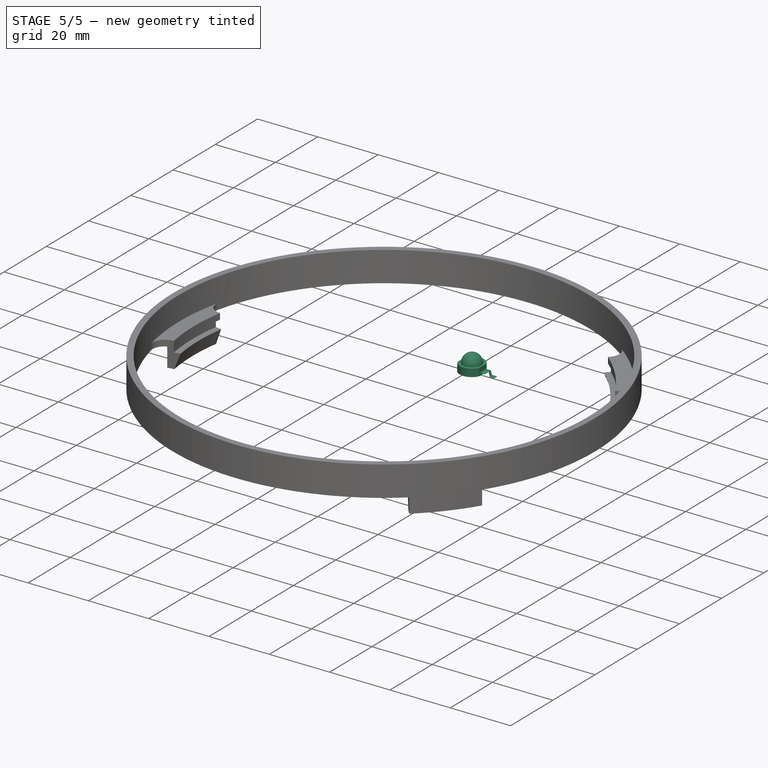
[diagram: stage 5 of 5 — iso view after this stage's code; geometry added in this stage tinted green]
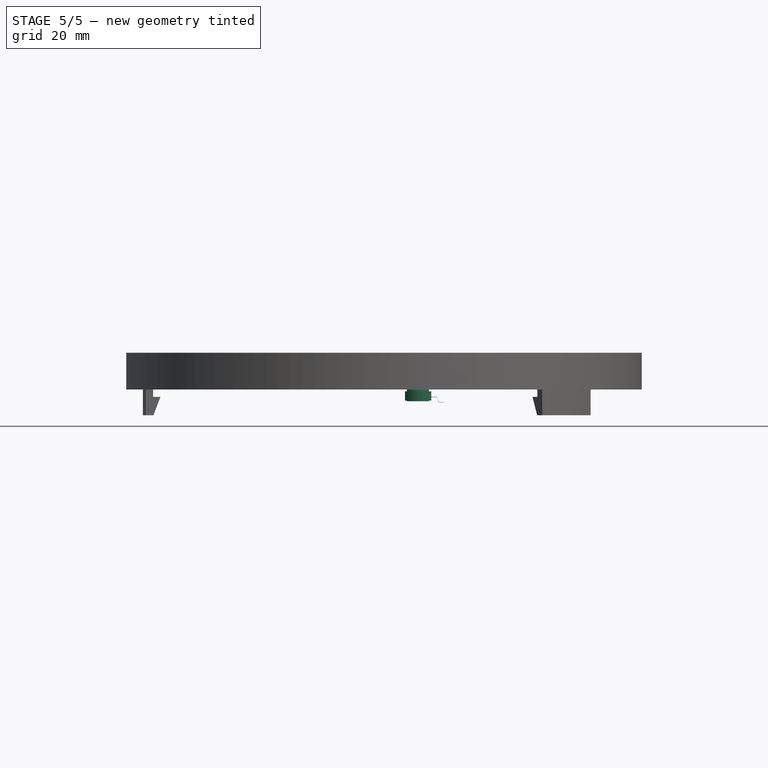
[diagram: stage 5 of 5 — front view after this stage's code; geometry added in this stage tinted green]
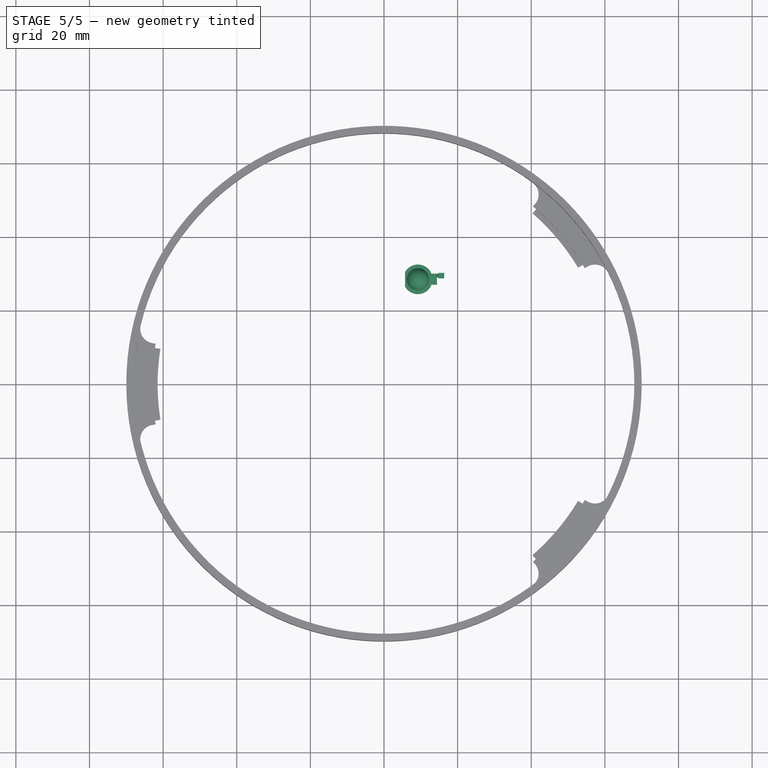
[diagram: stage 5 of 5 — top view after this stage's code; geometry added in this stage tinted green]
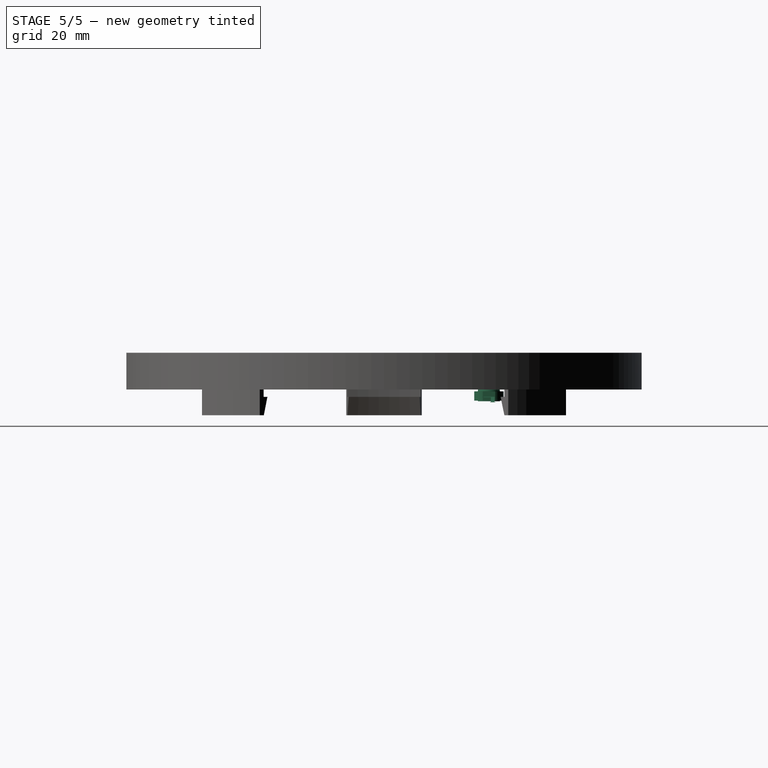
[diagram: stage 5 of 5 — right view after this stage's code; geometry added in this stage tinted green]
FEATURE [PartDesign::ShapeBinder] CopyPad001
  Placement = pos=(0,0,2.5) rot=(0,0,1;0rad)
  TraceSupport = false
FEATURE [PartDesign::Plane] DatumPlane001
  Length = 60
  MapMode = 5
  Placement = pos=(0,0,2.5) rot=(0,0,1;0rad)
  ResizeMode = 0
  Support = -> [CopyPad001]
  Width = 60
FEATURE [Sketcher::SketchObject] Sketch021
  MapMode = 5
  Placement = pos=(0,0,2.5) rot=(0,0,1;0rad)
  Support = -> [DatumPlane001]
  sketch-geometry (2):
    g0: LineSegment StartX=-3 StartY=0 StartZ=0 EndX=3 EndY=0 EndZ=0
    g1: ArcOfCircle CenterX=0 CenterY=0 CenterZ=0 NormalX=0 NormalY=0 NormalZ=1 AngleXU=0 Radius=3 StartAngle=0 EndAngle=3.14159
  constraints (6):
    c: PointOnObject(g0,g-1)
    c: Horizontal(g0)
    c: DistanceX(g0,g0) = 6
    c: Coincident(g1,g-1)
    c: Coincident(g1,g0)
    c: Coincident(g1,g0)
FEATURE [PartDesign::Revolution] Revolution001
  Angle = 180
  Axis = (1,0,0)
  Base = (0,0,2.5)
  Placement = pos=(0,0,2.5) rot=(0,0,1;0rad)
  Profile = -> Sketch021
  ReferenceAxis = -> Sketch021 [H_Axis]
FEATURE [PartDesign::Fillet] Fillet004
  Base = -> Pad012 [Edge32]
  BaseFeature = -> Pad012
  Radius = 0.09
FEATURE [PartDesign::Fillet] Fillet005
  Base = -> Fillet004 [Edge14]
  BaseFeature = -> Fillet004
  Radius = 0.1
FEATURE [PartDesign::Fillet] Fillet006
  Base = -> Fillet005 [Edge40]
  BaseFeature = -> Fillet005
  Radius = 0.04
FEATURE [PartDesign::Body] Body009  label="ThermalPad001"
  Group = -> [Sketch028,Pad013]
  Origin = -> Origin009
  Placement = pos=(0,0,-0.2) rot=(0,0,1;0rad)
  Tip = -> Pad013
FEATURE [Part::MultiFuse] Fusion001  label="LED1"
  Placement = pos=(9.2,28.5,-1) rot=(0,0,1;0rad)
  Shapes = -> [Body006,Body008,Body007,Body009]
FEATURE [PartDesign::FeatureBase] Clone
  BaseFeature = -> Fusion001
  Placement = pos=(9.2,28.5,-1) rot=(0,0,1;0rad)
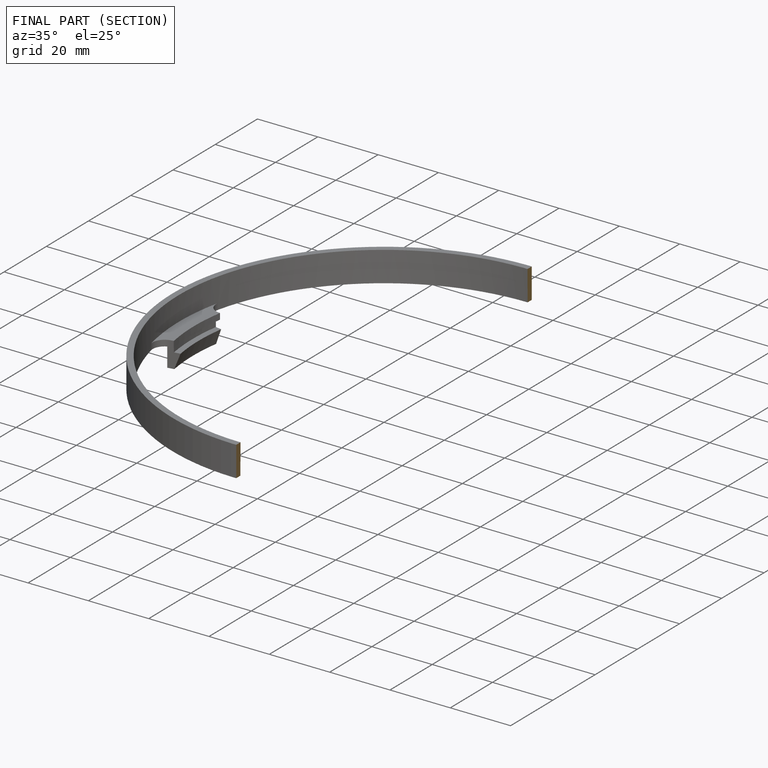
[diagram: finished part — half-section view (interior)]
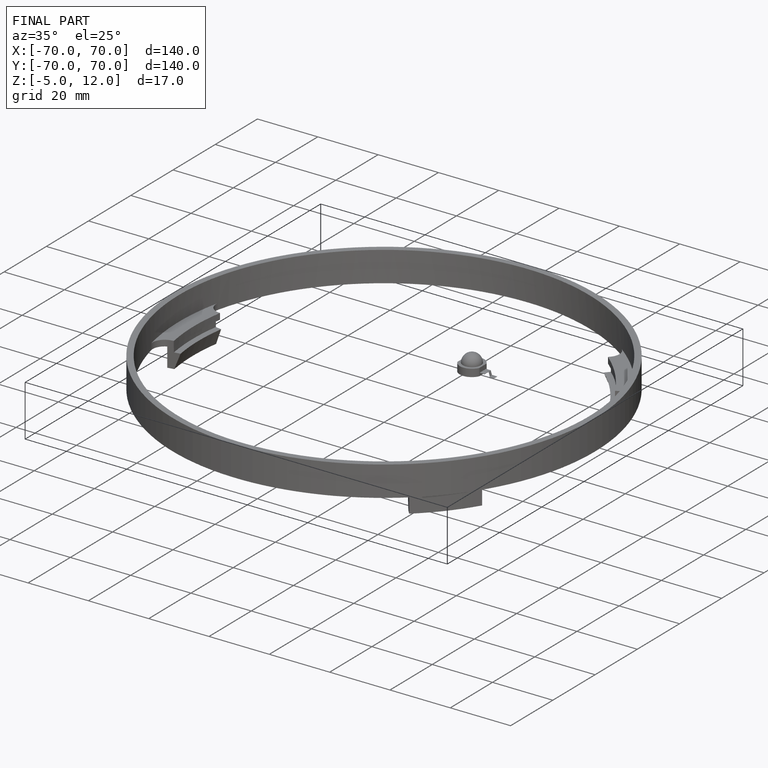
[diagram: finished part — iso view with bounding-box wireframe]
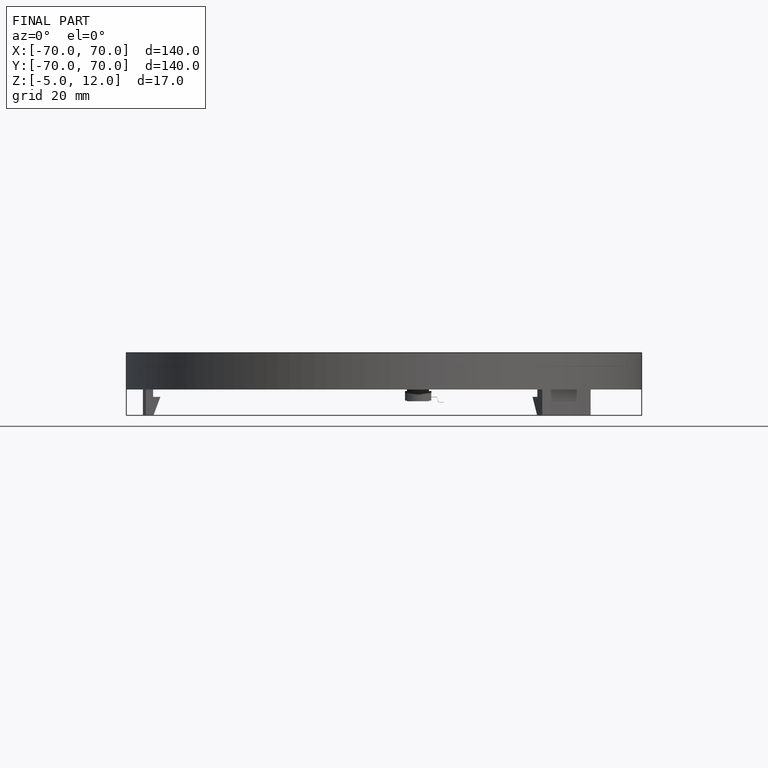
[diagram: finished part — front view with bounding-box wireframe]
